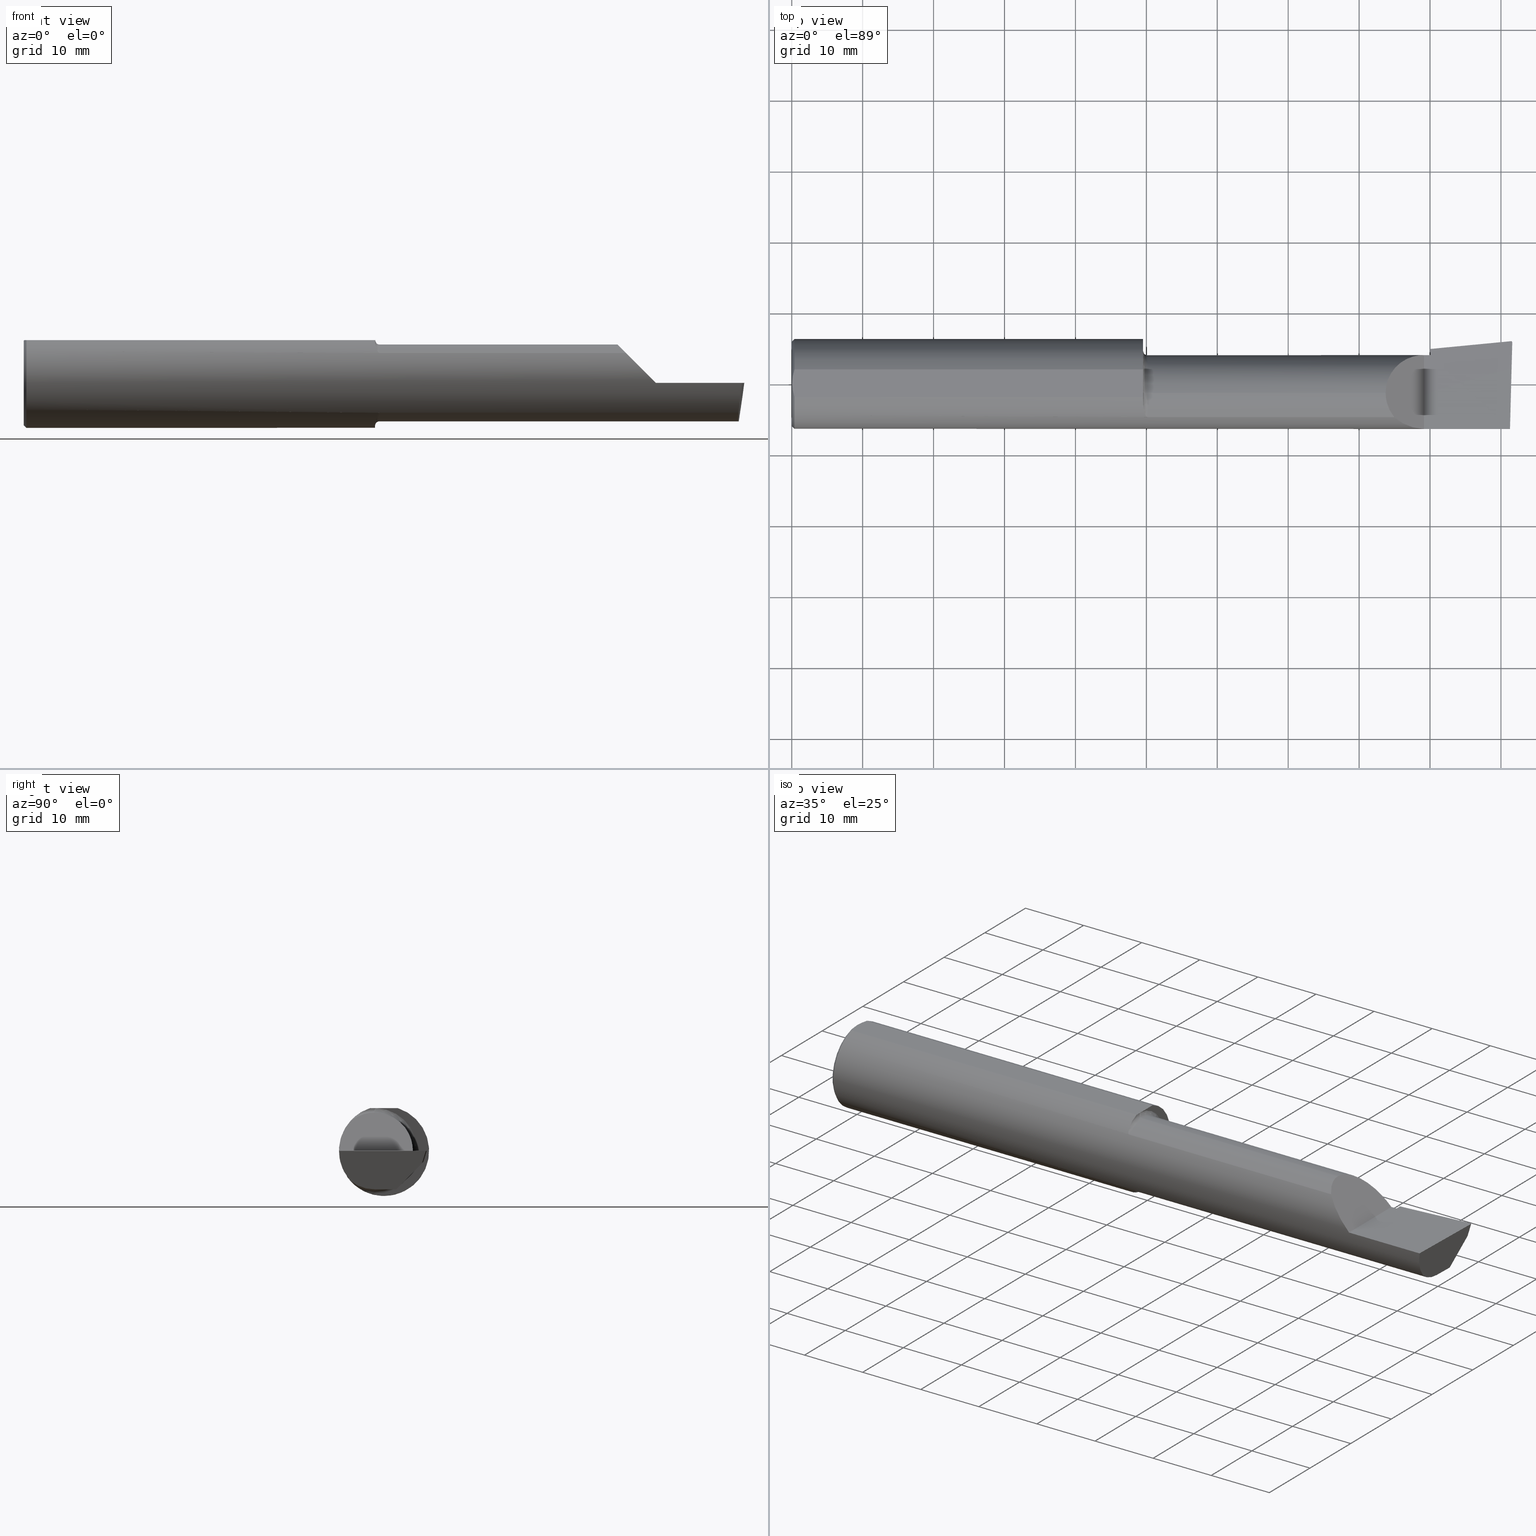
[diagram: canonical four-view strip — front | top / right | iso, engineering-drawing reading convention]
A machine part, canonical four-view strip (front | top / right | iso — engineering-drawing reading convention). The complete STEP part file that produces these views, byte-faithful:
ISO-10303-21;
HEADER;
FILE_DESCRIPTION (( 'STEP AP203' ),
    '1' );
FILE_NAME ('213714-B4902000R.STEP',
    '2024-04-17T17:30:40',
    ( '' ),
    ( '' ),
    'SwSTEP 2.0',
    'SolidWorks 2022',
    '' );
FILE_SCHEMA (( 'CONFIG_CONTROL_DESIGN' ));
ENDSEC;

DATA;
#1 = ADVANCED_FACE ( 'NONE', ( #698 ), #771, .F. ) ;
#2 = CARTESIAN_POINT ( 'NONE',  ( 1.950000900032402340, -0.05299999999999998462, 0.2378500000000221548 ) ) ;
#3 = CIRCLE ( 'NONE', #26, 0.2381499999999997785 ) ;
#4 = VECTOR ( 'NONE', #174, 39.37007874015748143 ) ;
#5 = CARTESIAN_POINT ( 'NONE',  ( 3.296849999999996061, -0.1021668565906576620, 0.2131499999999999229 ) ) ;
#6 = AXIS2_PLACEMENT_3D ( 'NONE', #72, #332, #69 ) ;
#7 = FACE_OUTER_BOUND ( 'NONE', #24, .T. ) ;
#8 = ADVANCED_FACE ( 'NONE', ( #632 ), #365, .T. ) ;
#9 = CARTESIAN_POINT ( 'NONE',  ( 3.544999999999999929, 0.02733053485622426171, -0.2131499999999999506 ) ) ;
#10 = EDGE_CURVE ( 'NONE', #235, #709, #434, .T. ) ;
#11 = LINE ( 'NONE', #354, #94 ) ;
#12 = LINE ( 'NONE', #416, #789 ) ;
#13 = APPROVAL ( #447, 'UNSPECIFIED' ) ;
#14 = AXIS2_PLACEMENT_3D ( 'NONE', #620, #822, #345 ) ;
#15 = CARTESIAN_POINT ( 'NONE',  ( 7.089685198749692867E-32, 0.1601499999999999313, 4.685946446163635703E-16 ) ) ;
#16 = ORIENTED_EDGE ( 'NONE', *, *, #374, .F. ) ;
#17 = ORIENTED_EDGE ( 'NONE', *, *, #604, .T. ) ;
#18 = DIRECTION ( 'NONE',  ( -0.9922060308645497262, 0.02598182930468380392, 0.1218693434051345420 ) ) ;
#19 = EDGE_CURVE ( 'NONE', #245, #629, #401, .T. ) ;
#20 = VERTEX_POINT ( 'NONE', #786 ) ;
#21 = EDGE_LOOP ( 'NONE', ( #40, #503, #287, #78 ) ) ;
#22 = ORIENTED_EDGE ( 'NONE', *, *, #228, .T. ) ;
#23 = CARTESIAN_POINT ( 'NONE',  ( 3.992906680581888690, 0.2374669910246689497, -1.355192034299833405E-16 ) ) ;
#24 = EDGE_LOOP ( 'NONE', ( #507, #816, #640 ) ) ;
#25 = ORIENTED_EDGE ( 'NONE', *, *, #761, .T. ) ;
#26 = AXIS2_PLACEMENT_3D ( 'NONE', #735, #326, #530 ) ;
#27 = VECTOR ( 'NONE', #807, 39.37007874015748143 ) ;
#28 = CARTESIAN_POINT ( 'NONE',  ( 0.01120763235350239959, 0.06411521680875344187, 0.2378500000000000336 ) ) ;
#29 = DIMENSIONAL_EXPONENTS ( 1.000000000000000000, 0.000000000000000000, 0.000000000000000000, 0.000000000000000000, 0.000000000000000000, 0.000000000000000000, 0.000000000000000000 ) ;
#30 = ORIENTED_EDGE ( 'NONE', *, *, #113, .F. ) ;
#31 = VERTEX_POINT ( 'NONE', #591 ) ;
#32 = LENGTH_MEASURE_WITH_UNIT ( LENGTH_MEASURE( 0.02539999999999999897 ), #435 );
#33 = VERTEX_POINT ( 'NONE', #251 ) ;
#34 = VERTEX_POINT ( 'NONE', #526 ) ;
#35 = CARTESIAN_POINT ( 'NONE',  ( 3.448145753305724259, -0.2498500000000001275, 0.06185424669427388999 ) ) ;
#36 = DATE_AND_TIME ( #770, #342 ) ;
#37 = CARTESIAN_POINT ( 'NONE',  ( 0.003000000000000063380, 0.01299872814765622858, 0.2378499999999999226 ) ) ;
#38 = ADVANCED_FACE ( 'NONE', ( #596 ), #659, .T. ) ;
#39 = CARTESIAN_POINT ( 'NONE',  ( 4.000000000000000000, -0.2500000000000000555, -1.365923996832131609E-16 ) ) ;
#40 = ORIENTED_EDGE ( 'NONE', *, *, #477, .T. ) ;
#41 = FACE_OUTER_BOUND ( 'NONE', #616, .T. ) ;
#42 = ORIENTED_EDGE ( 'NONE', *, *, #286, .F. ) ;
#43 = AXIS2_PLACEMENT_3D ( 'NONE', #67, #325, #529 ) ;
#44 = AXIS2_PLACEMENT_3D ( 'NONE', #413, #18, #484 ) ;
#45 = PERSON_AND_ORGANIZATION_ROLE ( 'creator' ) ;
#46 = CARTESIAN_POINT ( 'NONE',  ( 1.950000900032402340, -0.05299999999999998462, 0.2378500000000221548 ) ) ;
#47 = CARTESIAN_POINT ( 'NONE',  ( 3.534569588231495807, 0.1159501401920713659, -0.1355866241796521987 ) ) ;
#48 = DIRECTION ( 'NONE',  ( 0.000000000000000000, 0.000000000000000000, 1.000000000000000000 ) ) ;
#49 = CARTESIAN_POINT ( 'NONE',  ( 4.000000000000000000, -0.05299999999999998462, -0.2131499999999999229 ) ) ;
#50 = COORDINATED_UNIVERSAL_TIME_OFFSET ( 8, 0, .BEHIND. ) ;
#51 = APPROVAL_STATUS ( 'not_yet_approved' ) ;
#52 = DIRECTION ( 'NONE',  ( -1.000000000000000000, -0.000000000000000000, -0.000000000000000000 ) ) ;
#53 = CARTESIAN_POINT ( 'NONE',  ( 1.972243150415551094, -0.1862809296394751513, 0.1665094106511983141 ) ) ;
#54 = PRODUCT_DEFINITION_SHAPE ( 'NONE', 'NONE',  #565 ) ;
#55 = CARTESIAN_POINT ( 'NONE',  ( 3.536975816846326559, 0.1338694103809226765, -0.1025372660271275105 ) ) ;
#56 = PERSON_AND_ORGANIZATION ( #779, #552 ) ;
#57 = CARTESIAN_POINT ( 'NONE',  ( 1.975000000000000089, -0.1868028301886797693, -0.1659208399614082174 ) ) ;
#58 = PLANE ( 'NONE',  #43 ) ;
#59 = CARTESIAN_POINT ( 'NONE',  ( 1.950000000000000178, -0.08036415094339718901, 0.2365726648265747134 ) ) ;
#60 = CIRCLE ( 'NONE', #201, 0.02499999999999993894 ) ;
#61 = AXIS2_PLACEMENT_3D ( 'NONE', #264, #62, #856 ) ;
#62 = DIRECTION ( 'NONE',  ( 0.000000000000000000, 0.000000000000000000, 1.000000000000000000 ) ) ;
#63 = PLANE ( 'NONE',  #688 ) ;
#64 = CARTESIAN_POINT ( 'NONE',  ( 0.000000000000000000, -0.05299999999999998462, 0.2131499999999999506 ) ) ;
#65 = EDGE_CURVE ( 'NONE', #33, #489, #846, .T. ) ;
#66 = CARTESIAN_POINT ( 'NONE',  ( 1.967016733372314086, -0.1817333077058775337, -0.1714754572696057799 ) ) ;
#67 = CARTESIAN_POINT ( 'NONE',  ( 0.000000000000000000, 0.000000000000000000, 0.000000000000000000 ) ) ;
#68 = DIRECTION ( 'NONE',  ( -0.000000000000000000, 1.000000000000000000, 1.224646799147353207E-16 ) ) ;
#69 = DIRECTION ( 'NONE',  ( 0.000000000000000000, 1.000000000000000000, -1.138839417068643993E-16 ) ) ;
#70 = FACE_OUTER_BOUND ( 'NONE', #707, .T. ) ;
#71 = VECTOR ( 'NONE', #548, 39.37007874015748143 ) ;
#72 = CARTESIAN_POINT ( 'NONE',  ( 4.000000000000000000, 0.2998500000000000609, 0.2378499999999999504 ) ) ;
#73 = CC_DESIGN_APPROVAL ( #331, ( #349 ) ) ;
#74 = ADVANCED_FACE ( 'NONE', ( #718 ), #321, .F. ) ;
#75 = ORIENTED_EDGE ( 'NONE', *, *, #604, .F. ) ;
#76 = CARTESIAN_POINT ( 'NONE',  ( 0.000000000000000000, -0.05299999999999998462, 0.000000000000000000 ) ) ;
#77 = DIRECTION ( 'NONE',  ( 0.000000000000000000, 0.000000000000000000, -1.000000000000000000 ) ) ;
#78 = ORIENTED_EDGE ( 'NONE', *, *, #193, .T. ) ;
#79 = CARTESIAN_POINT ( 'NONE',  ( 1.975000000000000089, -0.05299999999999998462, 0.000000000000000000 ) ) ;
#80 = ORIENTED_EDGE ( 'NONE', *, *, #538, .F. ) ;
#81 = ORIENTED_EDGE ( 'NONE', *, *, #113, .T. ) ;
#82 = EDGE_LOOP ( 'NONE', ( #151, #500, #630, #844 ) ) ;
#83 = ADVANCED_FACE ( 'NONE', ( #115 ), #257, .F. ) ;
#84 = CARTESIAN_POINT ( 'NONE',  ( 3.993108609909219009, 0.2374864346074007926, -1.365705356632281459E-16 ) ) ;
#85 = ORIENTED_EDGE ( 'NONE', *, *, #439, .T. ) ;
#86 = VERTEX_POINT ( 'NONE', #654 ) ;
#87 = PLANE ( 'NONE',  #169 ) ;
#88 = VERTEX_POINT ( 'NONE', #394 ) ;
#89 = ORIENTED_EDGE ( 'NONE', *, *, #317, .F. ) ;
#90 = DIRECTION ( 'NONE',  ( 0.000000000000000000, 0.000000000000000000, -1.000000000000000000 ) ) ;
#91 = ORIENTED_EDGE ( 'NONE', *, *, #481, .T. ) ;
#92 = VERTEX_POINT ( 'NONE', #579 ) ;
#93 = EDGE_CURVE ( 'NONE', #763, #501, #843, .T. ) ;
#94 = VECTOR ( 'NONE', #549, 39.37007874015748854 ) ;
#95 = DIRECTION ( 'NONE',  ( 0.000000000000000000, 0.000000000000000000, 1.000000000000000000 ) ) ;
#96 = ADVANCED_FACE ( 'NONE', ( #512 ), #282, .F. ) ;
#97 = CARTESIAN_POINT ( 'NONE',  ( 0.004092330037930641193, 0.02606142970188499164, 0.2378500000000000059 ) ) ;
#98 = VERTEX_POINT ( 'NONE', #585 ) ;
#99 = CARTESIAN_POINT ( 'NONE',  ( 3.966195468375008470, -0.05299999999999998462, -0.2131499999999999229 ) ) ;
#100 = EDGE_CURVE ( 'NONE', #788, #772, #468, .T. ) ;
#101 = APPLICATION_CONTEXT ( 'configuration controlled 3d designs of mechanical parts and assemblies' ) ;
#102 = CC_DESIGN_PERSON_AND_ORGANIZATION_ASSIGNMENT ( #56, #187, ( #329 ) ) ;
#103 = EDGE_LOOP ( 'NONE', ( #694, #704, #760 ) ) ;
#104 = CARTESIAN_POINT ( 'NONE',  ( 3.989362363380625442, 0.2181189514202935831, -0.06059586115756942365 ) ) ;
#105 = DESIGN_CONTEXT ( 'detailed design', #101, 'design' ) ;
#106 = DATE_AND_TIME ( #636, #226 ) ;
#107 = DIRECTION ( 'NONE',  ( -1.000000000000000000, -0.000000000000000000, -0.000000000000000000 ) ) ;
#108 = DIRECTION ( 'NONE',  ( -1.512967610748942321E-16, 0.000000000000000000, -1.000000000000000000 ) ) ;
#109 = CARTESIAN_POINT ( 'NONE',  ( 0.004068542164723859197, -0.02585015905295368760, 0.2378499999999999226 ) ) ;
#110 = FACE_OUTER_BOUND ( 'NONE', #392, .T. ) ;
#111 = VECTOR ( 'NONE', #799, 39.37007874015748143 ) ;
#112 = AXIS2_PLACEMENT_3D ( 'NONE', #176, #642, #590 ) ;
#113 = EDGE_CURVE ( 'NONE', #629, #501, #208, .T. ) ;
#114 =( NAMED_UNIT ( * ) PLANE_ANGLE_UNIT ( ) SI_UNIT ( $, .RADIAN. ) );
#115 = FACE_OUTER_BOUND ( 'NONE', #82, .T. ) ;
#116 = CARTESIAN_POINT ( 'NONE',  ( 1.975000000000000089, -0.05299999999999998462, 0.000000000000000000 ) ) ;
#117 = CARTESIAN_POINT ( 'NONE',  ( 0.000000000000000000, -0.05299999999999998462, 0.000000000000000000 ) ) ;
#118 = ORIENTED_EDGE ( 'NONE', *, *, #627, .F. ) ;
#119 = APPLICATION_PROTOCOL_DEFINITION ( 'international standard', 'config_control_design', 1994, #802 ) ;
#120 = DIRECTION ( 'NONE',  ( 0.000000000000000000, 0.9524855432518775089, -0.3045837978228255749 ) ) ;
#121 = LINE ( 'NONE', #745, #152 ) ;
#122 = CARTESIAN_POINT ( 'NONE',  ( 1.967018584423771976, -0.1817363555988620871, 0.1714722504633798827 ) ) ;
#123 = CARTESIAN_POINT ( 'NONE',  ( 3.966195468375008470, -0.05299999999999998462, -0.2131499999999999229 ) ) ;
#124 = PERSON_AND_ORGANIZATION ( #779, #552 ) ;
#125 = CARTESIAN_POINT ( 'NONE',  ( 3.528944985009564217, 0.1743638780700109969, -0.06000000000000001166 ) ) ;
#126 = FACE_OUTER_BOUND ( 'NONE', #309, .T. ) ;
#127 = CARTESIAN_POINT ( 'NONE',  ( 0.01499999999999999771, 0.000000000000000000, -0.2498499999999999888 ) ) ;
#128 = EDGE_CURVE ( 'NONE', #433, #235, #327, .T. ) ;
#129 = EDGE_CURVE ( 'NONE', #487, #489, #60, .T. ) ;
#130 = LOCAL_TIME ( 10, 30, 40.00000000000000000, #465 ) ;
#131 =( BOUNDED_CURVE ( )  B_SPLINE_CURVE ( 3, ( #867, #134, #469, #741 ),
 .UNSPECIFIED., .F., .F. ) 
 B_SPLINE_CURVE_WITH_KNOTS ( ( 4, 4 ),
 ( 1.953092279228448858, 3.511516179717750763 ),
 .UNSPECIFIED. ) 
 CURVE ( )  GEOMETRIC_REPRESENTATION_ITEM ( )  RATIONAL_B_SPLINE_CURVE ( ( 1.000000000000000000, 0.8076450242550308189, 0.8076450242550308189, 1.000000000000000000 ) ) 
 REPRESENTATION_ITEM ( '' )  );
#132 = FACE_OUTER_BOUND ( 'NONE', #710, .T. ) ;
#133 = CARTESIAN_POINT ( 'NONE',  ( 3.509999999999999787, 0.1601499999999999035, -6.245698675651499853E-17 ) ) ;
#134 = CARTESIAN_POINT ( 'NONE',  ( 3.999910038027500558, 0.2347144908750976589, -1.375995697082077329E-16 ) ) ;
#135 = EDGE_CURVE ( 'NONE', #460, #763, #310, .T. ) ;
#136 = EDGE_CURVE ( 'NONE', #155, #86, #131, .T. ) ;
#137 = CARTESIAN_POINT ( 'NONE',  ( 1.962797058507745440, -0.1743943839926593575, -0.1789958554125692103 ) ) ;
#138 = DIRECTION ( 'NONE',  ( -0.000000000000000000, 0.000000000000000000, 1.000000000000000000 ) ) ;
#139 = DIRECTION ( 'NONE',  ( -0.09584575252021045044, 0.9953961983671800740, 0.000000000000000000 ) ) ;
#140 = VECTOR ( 'NONE', #403, 39.37007874015748143 ) ;
#141 = CIRCLE ( 'NONE', #635, 0.2348499999999996424 ) ;
#142 = DIRECTION ( 'NONE',  ( -1.000000000000000000, -0.000000000000000000, -0.000000000000000000 ) ) ;
#143 = DIRECTION ( 'NONE',  ( 0.000000000000000000, -1.000000000000000000, 0.000000000000000000 ) ) ;
#144 = DIRECTION ( 'NONE',  ( -0.1240019227989195005, -0.3022330132596635077, -0.9451342385281334968 ) ) ;
#145 = EDGE_LOOP ( 'NONE', ( #431, #421, #628, #826, #290, #288, #765, #558 ) ) ;
#146 = EDGE_CURVE ( 'NONE', #788, #34, #153, .T. ) ;
#147 = ORIENTED_EDGE ( 'NONE', *, *, #727, .T. ) ;
#148 = DIRECTION ( 'NONE',  ( 0.000000000000000000, 0.000000000000000000, 1.000000000000000000 ) ) ;
#149 = AXIS2_PLACEMENT_3D ( 'NONE', #767, #359, #161 ) ;
#150 = ORIENTED_EDGE ( 'NONE', *, *, #346, .T. ) ;
#151 = ORIENTED_EDGE ( 'NONE', *, *, #571, .F. ) ;
#152 = VECTOR ( 'NONE', #605, 39.37007874015748854 ) ;
#153 =( BOUNDED_CURVE ( )  B_SPLINE_CURVE ( 3, ( #787, #55, #670, #598 ),
 .UNSPECIFIED., .F., .F. ) 
 B_SPLINE_CURVE_WITH_KNOTS ( ( 4, 4 ),
 ( 2.868174658477173455, 2.883234730632700415 ),
 .UNSPECIFIED. ) 
 CURVE ( )  GEOMETRIC_REPRESENTATION_ITEM ( )  RATIONAL_B_SPLINE_CURVE ( ( 1.000000000000000000, 0.9999810996081960335, 0.9999810996081960335, 1.000000000000000000 ) ) 
 REPRESENTATION_ITEM ( '' )  );
#154 = MANIFOLD_SOLID_BREP ( 'Fillet1', #582 ) ;
#155 = VERTEX_POINT ( 'NONE', #183 ) ;
#156 = ADVANCED_FACE ( 'NONE', ( #271 ), #348, .F. ) ;
#157 = CARTESIAN_POINT ( 'NONE',  ( 1.950000000000000178, 0.000000000000000000, 0.000000000000000000 ) ) ;
#158 = ORIENTED_EDGE ( 'NONE', *, *, #128, .F. ) ;
#159 = ORIENTED_EDGE ( 'NONE', *, *, #791, .F. ) ;
#160 = DIRECTION ( 'NONE',  ( 0.000000000000000000, 0.000000000000000000, -1.000000000000000000 ) ) ;
#161 = DIRECTION ( 'NONE',  ( 0.000000000000000000, -1.000000000000000000, 1.707404996040164512E-16 ) ) ;
#162 = ORIENTED_EDGE ( 'NONE', *, *, #337, .T. ) ;
#163 = CARTESIAN_POINT ( 'NONE',  ( 1.950000000000000178, 0.07650098038587482829, 0.2378500000000000059 ) ) ;
#164 = ORIENTED_EDGE ( 'NONE', *, *, #409, .T. ) ;
#165 = DIRECTION ( 'NONE',  ( -1.000000000000000000, -0.000000000000000000, -0.000000000000000000 ) ) ;
#166 = VERTEX_POINT ( 'NONE', #663 ) ;
#167 = ORIENTED_EDGE ( 'NONE', *, *, #485, .F. ) ;
#168 = AXIS2_PLACEMENT_3D ( 'NONE', #116, #261, #603 ) ;
#169 = AXIS2_PLACEMENT_3D ( 'NONE', #562, #825, #680 ) ;
#170 = LINE ( 'NONE', #711, #454 ) ;
#171 = CC_DESIGN_PERSON_AND_ORGANIZATION_ASSIGNMENT ( #831, #45, ( #349 ) ) ;
#172 = CARTESIAN_POINT ( 'NONE',  ( 0.000000000000000000, 2.967931517733664878E-17, 0.2348499999999996424 ) ) ;
#173 = DIRECTION ( 'NONE',  ( 0.000000000000000000, 0.000000000000000000, 1.000000000000000000 ) ) ;
#174 = DIRECTION ( 'NONE',  ( 0.9953961983671787417, 0.09584575252022452252, -1.506002207992170530E-16 ) ) ;
#175 = APPROVAL_DATE_TIME ( #36, #13 ) ;
#176 = CARTESIAN_POINT ( 'NONE',  ( 1.950000000000000178, -0.05299999999999998462, 0.000000000000000000 ) ) ;
#177 = CARTESIAN_POINT ( 'NONE',  ( 1.950000000000000178, -0.05299999999999998462, 0.000000000000000000 ) ) ;
#178 = LINE ( 'NONE', #49, #262 ) ;
#179 = EDGE_CURVE ( 'NONE', #451, #31, #404, .T. ) ;
#180 = CARTESIAN_POINT ( 'NONE',  ( 0.01499999999999999771, 0.07650098038587481442, 0.2378500000000000059 ) ) ;
#181 = PRODUCT_RELATED_PRODUCT_CATEGORY ( 'detail', '', ( #329 ) ) ;
#182 = CARTESIAN_POINT ( 'NONE',  ( 0.01120982745448978989, -0.06412238594540857484, 0.2378500000000000336 ) ) ;
#183 = CARTESIAN_POINT ( 'NONE',  ( 3.999806390372775411, 0.2307563466314205836, -1.365348382555914988E-16 ) ) ;
#184 = CARTESIAN_POINT ( 'NONE',  ( 3.987226101480002782, -0.2496655036952227513, -1.346597502108382365E-16 ) ) ;
#185 = VECTOR ( 'NONE', #367, 39.37007874015748143 ) ;
#186 = APPROVAL_PERSON_ORGANIZATION ( #797, #798, #330 ) ;
#187 = PERSON_AND_ORGANIZATION_ROLE ( 'design_owner' ) ;
#188 = DIRECTION ( 'NONE',  ( 0.000000000000000000, 0.000000000000000000, 1.000000000000000000 ) ) ;
#189 = DIRECTION ( 'NONE',  ( 0.000000000000000000, 0.000000000000000000, 1.000000000000000000 ) ) ;
#190 = CARTESIAN_POINT ( 'NONE',  ( 3.968492717492762445, -0.1868028301886794917, -0.1659208399614086338 ) ) ;
#191 = CARTESIAN_POINT ( 'NONE',  ( 3.543466858877805326, 0.05663251955088012546, -0.1827944341085905589 ) ) ;
#192 = COORDINATED_UNIVERSAL_TIME_OFFSET ( 8, 0, .BEHIND. ) ;
#193 = EDGE_CURVE ( 'NONE', #166, #693, #724, .T. ) ;
#194 = CARTESIAN_POINT ( 'NONE',  ( 3.987221270274236229, -0.2498499999999999888, -1.346590301211604859E-16 ) ) ;
#195 = CARTESIAN_POINT ( 'NONE',  ( 1.975000000000000089, -0.1868028301886797693, -0.1659208399614082174 ) ) ;
#196 = CARTESIAN_POINT ( 'NONE',  ( 1.951680550596499808, -0.1214972057705736297, 0.2186080375779519414 ) ) ;
#197 = DIRECTION ( 'NONE',  ( 0.9953961983671800740, 0.09584575252021045044, -3.461085361674896978E-14 ) ) ;
#198 = CARTESIAN_POINT ( 'NONE',  ( 1.950000000000000178, -0.04503596074371392366, 0.2378500000000000059 ) ) ;
#199 = CARTESIAN_POINT ( 'NONE',  ( 1.950000000000000400, -0.09104204635388248035, 0.2329453649474653443 ) ) ;
#200 = EDGE_CURVE ( 'NONE', #92, #772, #488, .T. ) ;
#201 = AXIS2_PLACEMENT_3D ( 'NONE', #252, #68, #522 ) ;
#202 = VECTOR ( 'NONE', #280, 39.37007874015748143 ) ;
#203 = CARTESIAN_POINT ( 'NONE',  ( 1.965875558094659858, -0.1799506819598045704, -0.1733486322212174635 ) ) ;
#204 = DIRECTION ( 'NONE',  ( 0.000000000000000000, 0.000000000000000000, 1.000000000000000000 ) ) ;
#205 = CARTESIAN_POINT ( 'NONE',  ( 1.955537042546466653, -0.1495003888704992401, -0.2004994225712668776 ) ) ;
#206 = VERTEX_POINT ( 'NONE', #731 ) ;
#207 = CARTESIAN_POINT ( 'NONE',  ( 1.975000000000000089, -0.05299999999999998462, 0.2381499999999997785 ) ) ;
#208 = B_SPLINE_CURVE_WITH_KNOTS ( 'NONE', 3,
 ( #849, #182, #723, #109, #660, #318 ),
 .UNSPECIFIED., .F., .F.,
 ( 4, 2, 4 ),
 ( 0.002692677063605041030, 0.003672889278957893171, 0.004653101494310745746 ),
 .UNSPECIFIED. ) ;
#209 = B_SPLINE_CURVE_WITH_KNOTS ( 'NONE', 3,
 ( #568, #37, #97, #238, #28, #180 ),
 .UNSPECIFIED., .F., .F.,
 ( 4, 2, 4 ),
 ( 0.004653101494310745746, 0.005634627094920350784, 0.006616152695529954955 ),
 .UNSPECIFIED. ) ;
#210 = EDGE_LOOP ( 'NONE', ( #566, #589, #757, #42, #491, #554 ) ) ;
#211 = VECTOR ( 'NONE', #713, 39.37007874015748143 ) ;
#212 = CIRCLE ( 'NONE', #385, 0.2131500000000001172 ) ;
#213 = LINE ( 'NONE', #358, #202 ) ;
#214 = DIRECTION ( 'NONE',  ( -1.000000000000000000, -0.000000000000000000, -0.000000000000000000 ) ) ;
#215 = EDGE_CURVE ( 'NONE', #487, #88, #3, .T. ) ;
#216 = ORIENTED_EDGE ( 'NONE', *, *, #146, .T. ) ;
#217 = ORIENTED_EDGE ( 'NONE', *, *, #751, .T. ) ;
#218 = CARTESIAN_POINT ( 'NONE',  ( 0.01499999999999999771, 0.000000000000000000, 0.000000000000000000 ) ) ;
#219 = VERTEX_POINT ( 'NONE', #123 ) ;
#220 = ORIENTED_EDGE ( 'NONE', *, *, #784, .T. ) ;
#221 = AXIS2_PLACEMENT_3D ( 'NONE', #177, #776, #461 ) ;
#222 = CARTESIAN_POINT ( 'NONE',  ( 3.993310817358672438, 0.2374961668063717557, -1.366011289953956554E-16 ) ) ;
#223 = AXIS2_PLACEMENT_3D ( 'NONE', #832, #315, #90 ) ;
#224 = ORIENTED_EDGE ( 'NONE', *, *, #65, .F. ) ;
#225 = ORIENTED_EDGE ( 'NONE', *, *, #750, .T. ) ;
#226 = LOCAL_TIME ( 10, 30, 40.00000000000000000, #658 ) ;
#227 = ORIENTED_EDGE ( 'NONE', *, *, #577, .F. ) ;
#228 = EDGE_CURVE ( 'NONE', #699, #295, #702, .T. ) ;
#229 = APPROVAL_ROLE ( '' ) ;
#230 = LINE ( 'NONE', #296, #860 ) ;
#231 = ORIENTED_EDGE ( 'NONE', *, *, #135, .T. ) ;
#232 = EDGE_LOOP ( 'NONE', ( #833, #420, #75, #162 ) ) ;
#233 = ORIENTED_EDGE ( 'NONE', *, *, #93, .T. ) ;
#234 = CARTESIAN_POINT ( 'NONE',  ( 3.544999999999999929, -0.2500000000000000555, -6.775237339413629936E-17 ) ) ;
#235 = VERTEX_POINT ( 'NONE', #400 ) ;
#236 = ORIENTED_EDGE ( 'NONE', *, *, #817, .T. ) ;
#237 = CARTESIAN_POINT ( 'NONE',  ( 3.965703997523711166, -0.1485302233682060380, -0.1967848538638756750 ) ) ;
#238 = CARTESIAN_POINT ( 'NONE',  ( 0.008199648822848978544, 0.05156445313451100965, 0.2378500000000000059 ) ) ;
#239 = CARTESIAN_POINT ( 'NONE',  ( 0.01499999999999999771, 3.059780027669661931E-17, 0.2498499999999999888 ) ) ;
#240 = ORIENTED_EDGE ( 'NONE', *, *, #622, .T. ) ;
#241 = CIRCLE ( 'NONE', #364, 0.2498499999999999888 ) ;
#242 = CARTESIAN_POINT ( 'NONE',  ( 3.544999999999999929, -0.05299999999999998462, 0.000000000000000000 ) ) ;
#243 = CARTESIAN_POINT ( 'NONE',  ( 0.000000000000000000, -0.07650098038587477278, 0.2378500000000000059 ) ) ;
#244 = CARTESIAN_POINT ( 'NONE',  ( 0.01499999999999999771, 0.000000000000000000, 0.000000000000000000 ) ) ;
#245 = VERTEX_POINT ( 'NONE', #127 ) ;
#246 = EDGE_CURVE ( 'NONE', #235, #279, #570, .T. ) ;
#247 = CARTESIAN_POINT ( 'NONE',  ( 1.950000000000000178, -0.04105010460297241898, 0.2378500000000000059 ) ) ;
#248 = ORIENTED_EDGE ( 'NONE', *, *, #337, .F. ) ;
#249 =( BOUNDED_CURVE ( )  B_SPLINE_CURVE ( 3, ( #190, #533, #800, #608 ),
 .UNSPECIFIED., .F., .F. ) 
 B_SPLINE_CURVE_WITH_KNOTS ( ( 4, 4 ),
 ( 0.6344818218799022080, 1.360746882514783040 ),
 .UNSPECIFIED. ) 
 CURVE ( )  GEOMETRIC_REPRESENTATION_ITEM ( )  RATIONAL_B_SPLINE_CURVE ( ( 1.000000000000000000, 0.9565258159410998662, 0.9565258159410998662, 1.000000000000000000 ) ) 
 REPRESENTATION_ITEM ( '' )  );
#250 = APPROVAL_DATE_TIME ( #106, #331 ) ;
#251 = CARTESIAN_POINT ( 'NONE',  ( 1.975000000000000089, -0.05299999999999998462, 0.2131499999999997841 ) ) ;
#252 = CARTESIAN_POINT ( 'NONE',  ( 1.975000000000000089, -0.05299999999999996381, -0.2381499999999997785 ) ) ;
#253 = DIRECTION ( 'NONE',  ( 0.02617694830786353177, 0.9996573249755575929, -3.901665791506465006E-18 ) ) ;
#254 = ORIENTED_EDGE ( 'NONE', *, *, #664, .T. ) ;
#255 = ADVANCED_FACE ( 'NONE', ( #126 ), #541, .T. ) ;
#256 = APPROVAL_STATUS ( 'not_yet_approved' ) ;
#257 = PLANE ( 'NONE',  #383 ) ;
#258 = PLANE ( 'NONE',  #6 ) ;
#259 = ADVANCED_BREP_SHAPE_REPRESENTATION ( '213714-B4902000R', ( #154, #61 ), #456 ) ;
#260 = CARTESIAN_POINT ( 'NONE',  ( 1.975000000000000089, -0.1868028301886799081, 0.1659208399614080509 ) ) ;
#261 = DIRECTION ( 'NONE',  ( -1.000000000000000000, -0.000000000000000000, -0.000000000000000000 ) ) ;
#262 = VECTOR ( 'NONE', #639, 39.37007874015748143 ) ;
#263 = AXIS2_PLACEMENT_3D ( 'NONE', #648, #725, #576 ) ;
#264 = CARTESIAN_POINT ( 'NONE',  ( 0.000000000000000000, 0.000000000000000000, 0.000000000000000000 ) ) ;
#265 = LINE ( 'NONE', #546, #495 ) ;
#266 = CARTESIAN_POINT ( 'NONE',  ( 1.975000000000000089, -0.1868028301886799081, 0.1659208399614080509 ) ) ;
#267 = CARTESIAN_POINT ( 'NONE',  ( 3.509999999999999787, 0.1601499999999999035, -6.245698675651499853E-17 ) ) ;
#268 = ADVANCED_FACE ( 'NONE', ( #396 ), #58, .F. ) ;
#269 = CARTESIAN_POINT ( 'NONE',  ( 1.950000000000000178, -0.05299999999999996381, -0.2381499999999997785 ) ) ;
#270 = LINE ( 'NONE', #64, #140 ) ;
#271 = FACE_OUTER_BOUND ( 'NONE', #277, .T. ) ;
#272 = CARTESIAN_POINT ( 'NONE',  ( 1.972232603162240805, -0.1862758070845880742, -0.1665151405181419519 ) ) ;
#273 = CARTESIAN_POINT ( 'NONE',  ( 1.962758562425230835, -0.1743135686468872125, 0.1790760091940036824 ) ) ;
#274 = CIRCLE ( 'NONE', #758, 0.2131500000000001172 ) ;
#275 = CARTESIAN_POINT ( 'NONE',  ( 1.950000000000000178, 0.2998500000000000609, 0.2378499999999999504 ) ) ;
#276 = ADVANCED_FACE ( 'NONE', ( #7 ), #858, .T. ) ;
#277 = EDGE_LOOP ( 'NONE', ( #812, #524, #430, #302 ) ) ;
#278 = CARTESIAN_POINT ( 'NONE',  ( 3.296849999999997394, -0.05299999999999998462, 0.2131499999999999506 ) ) ;
#279 = VERTEX_POINT ( 'NONE', #266 ) ;
#280 = DIRECTION ( 'NONE',  ( -1.000000000000000000, -0.000000000000000000, -0.000000000000000000 ) ) ;
#281 = ADVANCED_FACE ( 'NONE', ( #743 ), #471, .T. ) ;
#282 = TOROIDAL_SURFACE ( 'NONE', #806, 0.2381499999999997785, 0.02499999999999993894 ) ;
#283 = LINE ( 'NONE', #15, #759 ) ;
#284 = ADVANCED_FACE ( 'NONE', ( #70 ), #651, .T. ) ;
#285 = CARTESIAN_POINT ( 'NONE',  ( 1.975000000000000089, -0.05299999999999998462, 0.000000000000000000 ) ) ;
#286 = EDGE_CURVE ( 'NONE', #555, #513, #249, .T. ) ;
#287 = ORIENTED_EDGE ( 'NONE', *, *, #390, .T. ) ;
#288 = ORIENTED_EDGE ( 'NONE', *, *, #727, .F. ) ;
#289 = CARTESIAN_POINT ( 'NONE',  ( 1.950000000000000178, -0.06494989539702750170, 0.2378500000000000059 ) ) ;
#290 = ORIENTED_EDGE ( 'NONE', *, *, #813, .F. ) ;
#291 = VERTEX_POINT ( 'NONE', #195 ) ;
#292 = DIRECTION ( 'NONE',  ( 0.000000000000000000, 0.000000000000000000, 1.000000000000000000 ) ) ;
#293 = ORIENTED_EDGE ( 'NONE', *, *, #855, .T. ) ;
#294 = ORIENTED_EDGE ( 'NONE', *, *, #538, .T. ) ;
#295 = VERTEX_POINT ( 'NONE', #133 ) ;
#296 = CARTESIAN_POINT ( 'NONE',  ( 1.950000000000000178, 0.2998500000000000609, 0.2378499999999999504 ) ) ;
#297 = ORIENTED_EDGE ( 'NONE', *, *, #791, .T. ) ;
#298 = VERTEX_POINT ( 'NONE', #467 ) ;
#299 = CARTESIAN_POINT ( 'NONE',  ( 3.544999999999999929, 0.1759098001822370361, -0.06000000000000001166 ) ) ;
#300 =( CONVERSION_BASED_UNIT ( 'INCH', #32 ) LENGTH_UNIT ( ) NAMED_UNIT ( #29 ) );
#301 = EDGE_LOOP ( 'NONE', ( #225, #25, #437, #564 ) ) ;
#302 = ORIENTED_EDGE ( 'NONE', *, *, #577, .T. ) ;
#303 = ORIENTED_EDGE ( 'NONE', *, *, #736, .T. ) ;
#304 = FACE_OUTER_BOUND ( 'NONE', #494, .T. ) ;
#305 =( BOUNDED_CURVE ( )  B_SPLINE_CURVE ( 3, ( #519, #237, #432, #99 ),
 .UNSPECIFIED., .F., .F. ) 
 B_SPLINE_CURVE_WITH_KNOTS ( ( 4, 4 ),
 ( 5.814587959757459679, 6.493234751459699083 ),
 .UNSPECIFIED. ) 
 CURVE ( )  GEOMETRIC_REPRESENTATION_ITEM ( )  RATIONAL_B_SPLINE_CURVE ( ( 1.000000000000000000, 0.9619867256453022986, 0.9619867256453022986, 1.000000000000000000 ) ) 
 REPRESENTATION_ITEM ( '' )  );
#306 = EDGE_CURVE ( 'NONE', #693, #92, #339, .T. ) ;
#307 = DIRECTION ( 'NONE',  ( -0.02617694830786351096, -0.9996573249755575929, 1.707029659308874488E-16 ) ) ;
#308 = DIRECTION ( 'NONE',  ( 0.000000000000000000, 0.000000000000000000, 1.000000000000000000 ) ) ;
#309 = EDGE_LOOP ( 'NONE', ( #824, #714, #85, #619, #248, #690, #158, #220, #426, #356, #515, #423, #227 ) ) ;
#310 = CIRCLE ( 'NONE', #551, 0.2348499999999996424 ) ;
#311 = TOROIDAL_SURFACE ( 'NONE', #263, 0.2381499999999997785, 0.02499999999999993894 ) ;
#312 = CYLINDRICAL_SURFACE ( 'NONE', #808, 0.2131499999999999506 ) ;
#313 = ORIENTED_EDGE ( 'NONE', *, *, #492, .F. ) ;
#314 = PERSON_AND_ORGANIZATION_ROLE ( 'classification_officer' ) ;
#315 = DIRECTION ( 'NONE',  ( 1.000000000000000000, 0.000000000000000000, 0.000000000000000000 ) ) ;
#316 = CARTESIAN_POINT ( 'NONE',  ( 3.509999999999999787, -0.2500000000000000555, -6.245698675651499853E-17 ) ) ;
#317 = EDGE_CURVE ( 'NONE', #699, #33, #270, .T. ) ;
#318 = CARTESIAN_POINT ( 'NONE',  ( 0.003000000000000035624, 4.000210840755228160E-17, 0.2378500000000000059 ) ) ;
#319 = CARTESIAN_POINT ( 'NONE',  ( 3.991359894127309182, 0.2138750095474682700, -0.06516861643763581513 ) ) ;
#320 = DATE_AND_TIME ( #726, #775 ) ;
#321 = PLANE ( 'NONE',  #611 ) ;
#322 = CARTESIAN_POINT ( 'NONE',  ( 0.000000000000000000, 0.000000000000000000, 0.000000000000000000 ) ) ;
#323 = EDGE_CURVE ( 'NONE', #357, #504, #446, .T. ) ;
#324 = CARTESIAN_POINT ( 'NONE',  ( 3.544999999999999929, 0.2148312740513257935, -0.01988118725737609768 ) ) ;
#325 = DIRECTION ( 'NONE',  ( 1.000000000000000000, 0.000000000000000000, 0.000000000000000000 ) ) ;
#326 = DIRECTION ( 'NONE',  ( -1.000000000000000000, -0.000000000000000000, -0.000000000000000000 ) ) ;
#327 = CIRCLE ( 'NONE', #411, 0.2498499999999999888 ) ;
#328 = AXIS2_PLACEMENT_3D ( 'NONE', #836, #631, #160 ) ;
#329 = PRODUCT ( '213714-B4902000R', '213714-B4902000R', '', ( #790 ) ) ;
#330 = APPROVAL_ROLE ( '' ) ;
#331 = APPROVAL ( #256, 'UNSPECIFIED' ) ;
#332 = DIRECTION ( 'NONE',  ( 0.000000000000000000, -1.138839417068643993E-16, -1.000000000000000000 ) ) ;
#333 = CARTESIAN_POINT ( 'NONE',  ( 1.970144309637441138, -0.1849788583324336322, 0.1679547276881062645 ) ) ;
#334 = CARTESIAN_POINT ( 'NONE',  ( 3.541916792879877374, 0.05627666367902749156, -0.1830073912696826288 ) ) ;
#335 = FACE_OUTER_BOUND ( 'NONE', #837, .T. ) ;
#336 = CARTESIAN_POINT ( 'NONE',  ( 0.01499999999999999771, 0.000000000000000000, 0.000000000000000000 ) ) ;
#337 = EDGE_CURVE ( 'NONE', #279, #206, #610, .T. ) ;
#338 = CARTESIAN_POINT ( 'NONE',  ( 0.000000000000000000, 0.07650098038587481442, 0.2378500000000000059 ) ) ;
#339 = LINE ( 'NONE', #734, #543 ) ;
#340 = AXIS2_PLACEMENT_3D ( 'NONE', #336, #866, #399 ) ;
#341 = AXIS2_PLACEMENT_3D ( 'NONE', #285, #814, #148 ) ;
#342 = LOCAL_TIME ( 10, 30, 40.00000000000000000, #362 ) ;
#343 = CARTESIAN_POINT ( 'NONE',  ( 1.950000000000000178, -0.08036415094339718901, -0.2365726648265747134 ) ) ;
#344 = ORIENTED_EDGE ( 'NONE', *, *, #592, .T. ) ;
#345 = DIRECTION ( 'NONE',  ( 0.000000000000000000, 0.000000000000000000, 1.000000000000000000 ) ) ;
#346 = EDGE_CURVE ( 'NONE', #92, #166, #274, .T. ) ;
#347 = DIRECTION ( 'NONE',  ( -1.000000000000000000, -0.000000000000000000, -0.000000000000000000 ) ) ;
#348 = TOROIDAL_SURFACE ( 'NONE', #168, 0.2381499999999997785, 0.02499999999999993894 ) ;
#349 = PRODUCT_DEFINITION_FORMATION_WITH_SPECIFIED_SOURCE ( 'ANY', '', #329, .NOT_KNOWN. ) ;
#350 = FACE_OUTER_BOUND ( 'NONE', #572, .T. ) ;
#351 = ORIENTED_EDGE ( 'NONE', *, *, #813, .T. ) ;
#352 = ORIENTED_EDGE ( 'NONE', *, *, #682, .F. ) ;
#353 = EDGE_LOOP ( 'NONE', ( #417, #233, #217, #303, #508 ) ) ;
#354 = CARTESIAN_POINT ( 'NONE',  ( 3.984064920189355430, 0.2159167454668760588, -0.06739129754782903492 ) ) ;
#355 = ORIENTED_EDGE ( 'NONE', *, *, #841, .F. ) ;
#356 = ORIENTED_EDGE ( 'NONE', *, *, #736, .F. ) ;
#357 = VERTEX_POINT ( 'NONE', #247 ) ;
#358 = CARTESIAN_POINT ( 'NONE',  ( 2.760000000000000231, -0.1868028301886794917, -0.1659208399614086338 ) ) ;
#359 = DIRECTION ( 'NONE',  ( 9.717439401676380705E-34, 1.707404996040164512E-16, 1.000000000000000000 ) ) ;
#360 = VERTEX_POINT ( 'NONE', #299 ) ;
#361 = ORIENTED_EDGE ( 'NONE', *, *, #390, .F. ) ;
#362 = COORDINATED_UNIVERSAL_TIME_OFFSET ( 8, 0, .BEHIND. ) ;
#363 = CARTESIAN_POINT ( 'NONE',  ( 3.540349815208490458, 0.05592018782259767368, -0.1832193089843152378 ) ) ;
#364 = AXIS2_PLACEMENT_3D ( 'NONE', #157, #785, #842 ) ;
#365 = CYLINDRICAL_SURFACE ( 'NONE', #687, 0.006499999999999990161 ) ;
#366 = ORIENTED_EDGE ( 'NONE', *, *, #100, .F. ) ;
#367 = DIRECTION ( 'NONE',  ( -1.000000000000000000, -0.000000000000000000, -0.000000000000000000 ) ) ;
#368 = ORIENTED_EDGE ( 'NONE', *, *, #817, .F. ) ;
#369 = SECURITY_CLASSIFICATION_LEVEL ( 'unclassified' ) ;
#370 = CARTESIAN_POINT ( 'NONE',  ( 3.544999999999999929, -0.05299999999999998462, 0.000000000000000000 ) ) ;
#371 = ORIENTED_EDGE ( 'NONE', *, *, #650, .T. ) ;
#372 = ORIENTED_EDGE ( 'NONE', *, *, #542, .F. ) ;
#373 = CARTESIAN_POINT ( 'NONE',  ( 7.089685198749692867E-32, -0.2498499999999999610, 4.685946446163635703E-16 ) ) ;
#374 = EDGE_CURVE ( 'NONE', #555, #219, #305, .T. ) ;
#375 = PERSON_AND_ORGANIZATION_ROLE ( 'design_supplier' ) ;
#376 = PLANE ( 'NONE',  #328 ) ;
#377 = CARTESIAN_POINT ( 'NONE',  ( 1.975000000000000089, -0.05299999999999998462, 0.000000000000000000 ) ) ;
#378 = ORIENTED_EDGE ( 'NONE', *, *, #323, .T. ) ;
#379 = CARTESIAN_POINT ( 'NONE',  ( 0.000000000000000000, 0.000000000000000000, -0.2348499999999996424 ) ) ;
#380 = CARTESIAN_POINT ( 'NONE',  ( 3.966218632342873196, -0.05211540375603092301, -0.2131499999999999229 ) ) ;
#381 = ADVANCED_FACE ( 'NONE', ( #110 ), #778, .F. ) ;
#382 = AXIS2_PLACEMENT_3D ( 'NONE', #244, #449, #188 ) ;
#383 = AXIS2_PLACEMENT_3D ( 'NONE', #316, #455, #728 ) ;
#384 = DIRECTION ( 'NONE',  ( 0.000000000000000000, 0.000000000000000000, -1.000000000000000000 ) ) ;
#385 = AXIS2_PLACEMENT_3D ( 'NONE', #370, #107, #292 ) ;
#386 = DIRECTION ( 'NONE',  ( 1.000000000000000000, 0.000000000000000000, 0.000000000000000000 ) ) ;
#387 = SHAPE_DEFINITION_REPRESENTATION ( #54, #259 ) ;
#388 = APPROVAL_DATE_TIME ( #320, #798 ) ;
#389 = CARTESIAN_POINT ( 'NONE',  ( 1.950000000000000178, 0.1851499999999997870, 0.000000000000000000 ) ) ;
#390 = EDGE_CURVE ( 'NONE', #219, #166, #178, .T. ) ;
#391 = CARTESIAN_POINT ( 'NONE',  ( 3.544999999999999929, -0.05299999999999998462, -0.2131499999999999229 ) ) ;
#392 = EDGE_LOOP ( 'NONE', ( #769, #580, #372, #91 ) ) ;
#393 = PERSON_AND_ORGANIZATION ( #779, #552 ) ;
#394 = CARTESIAN_POINT ( 'NONE',  ( 1.950000000000000178, -0.08036415094339718901, -0.2365726648265747134 ) ) ;
#395 = CARTESIAN_POINT ( 'NONE',  ( 1.975000000000000089, -0.05299999999999996381, -0.2131499999999997841 ) ) ;
#396 = FACE_OUTER_BOUND ( 'NONE', #569, .T. ) ;
#397 = APPROVAL_ROLE ( '' ) ;
#398 = LINE ( 'NONE', #324, #721 ) ;
#399 = DIRECTION ( 'NONE',  ( 0.000000000000000000, 0.000000000000000000, -1.000000000000000000 ) ) ;
#400 = CARTESIAN_POINT ( 'NONE',  ( 1.950000000000000178, -0.08036415094339718901, 0.2365726648265747134 ) ) ;
#401 = CIRCLE ( 'NONE', #382, 0.2498499999999999888 ) ;
#402 = CARTESIAN_POINT ( 'NONE',  ( 0.003000000000000035624, 4.000210840755228160E-17, 0.2378500000000000059 ) ) ;
#403 = DIRECTION ( 'NONE',  ( -1.000000000000000000, -0.000000000000000000, -0.000000000000000000 ) ) ;
#404 = LINE ( 'NONE', #457, #774 ) ;
#405 = EDGE_CURVE ( 'NONE', #783, #753, #773, .T. ) ;
#406 = CARTESIAN_POINT ( 'NONE',  ( 3.968492717492762445, -0.1868028301886794917, -0.1659208399614086338 ) ) ;
#407 = CC_DESIGN_DATE_AND_TIME_ASSIGNMENT ( #428, #657, ( #614 ) ) ;
#408 = DIRECTION ( 'NONE',  ( 0.000000000000000000, 0.9524855432518775089, -0.3045837978228255749 ) ) ;
#409 = EDGE_CURVE ( 'NONE', #298, #451, #852, .T. ) ;
#410 = CARTESIAN_POINT ( 'NONE',  ( 1.949999999999989297, -0.1016924291521895257, -0.2293274111511737212 ) ) ;
#411 = AXIS2_PLACEMENT_3D ( 'NONE', #674, #655, #384 ) ;
#412 = VECTOR ( 'NONE', #466, 39.37007874015748854 ) ;
#413 = CARTESIAN_POINT ( 'NONE',  ( 3.963949576795522844, -0.1303119248116119400, -0.2149526021148821242 ) ) ;
#414 = EDGE_CURVE ( 'NONE', #513, #155, #581, .T. ) ;
#415 = CYLINDRICAL_SURFACE ( 'NONE', #612, 0.2131499999999999506 ) ;
#416 = CARTESIAN_POINT ( 'NONE',  ( 0.000000000000000000, -0.05299999999999996381, -0.2131499999999999506 ) ) ;
#417 = ORIENTED_EDGE ( 'NONE', *, *, #587, .F. ) ;
#418 = CIRCLE ( 'NONE', #341, 0.2131499999999997841 ) ;
#419 = CARTESIAN_POINT ( 'NONE',  ( 3.993512870449309915, 0.2374961668063717279, -1.365923996832131609E-16 ) ) ;
#420 = ORIENTED_EDGE ( 'NONE', *, *, #317, .T. ) ;
#421 = ORIENTED_EDGE ( 'NONE', *, *, #136, .T. ) ;
#422 =( BOUNDED_CURVE ( )  B_SPLINE_CURVE ( 3, ( #645, #35, #839, #656 ),
 .UNSPECIFIED., .F., .F. ) 
 B_SPLINE_CURVE_WITH_KNOTS ( ( 4, 4 ),
 ( 4.712388980384687898, 5.438654041019563401 ),
 .UNSPECIFIED. ) 
 CURVE ( )  GEOMETRIC_REPRESENTATION_ITEM ( )  RATIONAL_B_SPLINE_CURVE ( ( 1.000000000000000000, 0.9565258159411005323, 0.9565258159411005323, 1.000000000000000000 ) ) 
 REPRESENTATION_ITEM ( '' )  );
#423 = ORIENTED_EDGE ( 'NONE', *, *, #750, .F. ) ;
#424 = EDGE_CURVE ( 'NONE', #451, #155, #170, .T. ) ;
#425 = CARTESIAN_POINT ( 'NONE',  ( 3.509999999999999787, -0.2500000000000000555, -6.245698675651499853E-17 ) ) ;
#426 = ORIENTED_EDGE ( 'NONE', *, *, #19, .F. ) ;
#427 = VERTEX_POINT ( 'NONE', #163 ) ;
#428 = DATE_AND_TIME ( #853, #792 ) ;
#429 = CARTESIAN_POINT ( 'NONE',  ( 1.950000000000000178, -0.06096394231309124057, 0.2378500000000000059 ) ) ;
#430 = ORIENTED_EDGE ( 'NONE', *, *, #682, .T. ) ;
#431 = ORIENTED_EDGE ( 'NONE', *, *, #414, .T. ) ;
#432 = CARTESIAN_POINT ( 'NONE',  ( 3.964907988924523785, -0.1021668565906570653, -0.2131499999999999784 ) ) ;
#433 = VERTEX_POINT ( 'NONE', #705 ) ;
#434 = CIRCLE ( 'NONE', #221, 0.2381499999999997785 ) ;
#435 =( LENGTH_UNIT ( ) NAMED_UNIT ( * ) SI_UNIT ( $, .METRE. ) );
#436 = CIRCLE ( 'NONE', #112, 0.2381499999999997785 ) ;
#437 = ORIENTED_EDGE ( 'NONE', *, *, #841, .T. ) ;
#438 = ORIENTED_EDGE ( 'NONE', *, *, #129, .F. ) ;
#439 = EDGE_CURVE ( 'NONE', #513, #823, #845, .T. ) ;
#440 = CARTESIAN_POINT ( 'NONE',  ( 3.527186805775588851, 0.1926232675528999905, -6.829619984160658046E-17 ) ) ;
#441 = CARTESIAN_POINT ( 'NONE',  ( 3.985635073714570709, 0.2182954141789433533, -0.06004403198038582579 ) ) ;
#442 = DIRECTION ( 'NONE',  ( 1.000000000000000000, 0.000000000000000000, 0.000000000000000000 ) ) ;
#443 = DIRECTION ( 'NONE',  ( 0.09165774897393341725, -0.9519021185660615503, 0.2923717047227301635 ) ) ;
#444 = EDGE_CURVE ( 'NONE', #823, #206, #422, .T. ) ;
#445 = UNCERTAINTY_MEASURE_WITH_UNIT (LENGTH_MEASURE( 1.000000000000000082E-05 ), #300, 'distance_accuracy_value', 'NONE');
#446 = B_SPLINE_CURVE_WITH_KNOTS ( 'NONE', 3,
 ( #537, #198, #673, #2 ),
 .UNSPECIFIED., .F., .F.,
 ( 4, 4 ),
 ( 0.000000000000000000, 0.4999999999997236100 ),
 .UNSPECIFIED. ) ;
#447 = APPROVAL_STATUS ( 'not_yet_approved' ) ;
#448 = FACE_OUTER_BOUND ( 'NONE', #301, .T. ) ;
#449 = DIRECTION ( 'NONE',  ( -1.000000000000000000, -0.000000000000000000, -0.000000000000000000 ) ) ;
#450 = CARTESIAN_POINT ( 'NONE',  ( 0.9762916401177922365, -0.05299999999999998462, 3.208848816020454083E-16 ) ) ;
#451 = VERTEX_POINT ( 'NONE', #514 ) ;
#452 = CARTESIAN_POINT ( 'NONE',  ( 3.985436870590281178, 0.2183047977990047461, -0.06001468779820763599 ) ) ;
#453 = ADVANCED_FACE ( 'NONE', ( #304 ), #311, .F. ) ;
#454 = VECTOR ( 'NONE', #594, 39.37007874015748854 ) ;
#455 = DIRECTION ( 'NONE',  ( -0.7071067811865439090, 0.000000000000000000, -0.7071067811865511255 ) ) ;
#456 =( GEOMETRIC_REPRESENTATION_CONTEXT ( 3 ) GLOBAL_UNCERTAINTY_ASSIGNED_CONTEXT ( ( #445 ) ) GLOBAL_UNIT_ASSIGNED_CONTEXT ( ( #300, #114, #520 ) ) REPRESENTATION_CONTEXT ( 'NONE', 'WORKASPACE' ) );
#457 = CARTESIAN_POINT ( 'NONE',  ( 3.983714411583730630, 0.1632262006094490903, -0.1166167083458043846 ) ) ;
#458 = APPROVAL_PERSON_ORGANIZATION ( #641, #13, #229 ) ;
#459 = CARTESIAN_POINT ( 'NONE',  ( 3.990474961019639277, 0.2080126185684980644, -0.07112352112763094258 ) ) ;
#460 = VERTEX_POINT ( 'NONE', #379 ) ;
#461 = DIRECTION ( 'NONE',  ( 0.000000000000000000, 0.000000000000000000, 1.000000000000000000 ) ) ;
#462 = CARTESIAN_POINT ( 'NONE',  ( 3.535684672073136081, 0.1043695517189344030, -0.2900000000000000910 ) ) ;
#463 = CARTESIAN_POINT ( 'NONE',  ( 1.957343635746627175, -0.1582230848692702252, 0.1936715022401945541 ) ) ;
#464 = CARTESIAN_POINT ( 'NONE',  ( 3.540349815208490458, 0.05592018782259767368, -0.1832193089843152378 ) ) ;
#465 = COORDINATED_UNIVERSAL_TIME_OFFSET ( 8, 0, .BEHIND. ) ;
#466 = DIRECTION ( 'NONE',  ( 0.06658005426110603919, -0.6914603011188220627, -0.7193398003386548556 ) ) ;
#467 = CARTESIAN_POINT ( 'NONE',  ( 3.985635073714570709, 0.2182954141789433533, -0.06004403198038582579 ) ) ;
#468 =( BOUNDED_CURVE ( )  B_SPLINE_CURVE ( 3, ( #517, #47, #854, #521 ),
 .UNSPECIFIED., .F., .F. ) 
 B_SPLINE_CURVE_WITH_KNOTS ( ( 4, 4 ),
 ( 0.4968328636548078880, 1.034445644973930545 ),
 .UNSPECIFIED. ) 
 CURVE ( )  GEOMETRIC_REPRESENTATION_ITEM ( )  RATIONAL_B_SPLINE_CURVE ( ( 1.000000000000000000, 0.9760590552538844777, 0.9760590552538844777, 1.000000000000000000 ) ) 
 REPRESENTATION_ITEM ( '' )  );
#469 = CARTESIAN_POINT ( 'NONE',  ( 3.997312560284819405, 0.2374961668063720333, -1.372065797387761951E-16 ) ) ;
#470 = CARTESIAN_POINT ( 'NONE',  ( 1.970138573936400572, -0.1849738682364336084, -0.1679602226613245985 ) ) ;
#471 = CYLINDRICAL_SURFACE ( 'NONE', #493, 0.006499999999999990161 ) ;
#472 = DIRECTION ( 'NONE',  ( 0.000000000000000000, 1.000000000000000000, -1.707404996040164265E-16 ) ) ;
#473 = ADVANCED_FACE ( 'NONE', ( #41 ), #312, .T. ) ;
#474 = CIRCLE ( 'NONE', #653, 0.2131499999999997841 ) ;
#475 = CARTESIAN_POINT ( 'NONE',  ( 3.528944985009564217, 0.1743638780700109969, -0.06000000000000001166 ) ) ;
#476 = CARTESIAN_POINT ( 'NONE',  ( 3.544999999999999929, 0.1943384830701196664, 0.000000000000000000 ) ) ;
#477 = EDGE_CURVE ( 'NONE', #693, #31, #121, .T. ) ;
#478 = CARTESIAN_POINT ( 'NONE',  ( 1.951227564404961257, -0.1217005943024302012, -0.2193523119135132871 ) ) ;
#479 =( BOUNDED_CURVE ( )  B_SPLINE_CURVE ( 3, ( #419, #222, #84, #746 ),
 .UNSPECIFIED., .F., .T. ) 
 B_SPLINE_CURVE_WITH_KNOTS ( ( 4, 4 ),
 ( 3.511516179717750763, 3.604018710826266680 ),
 .UNSPECIFIED. ) 
 CURVE ( )  GEOMETRIC_REPRESENTATION_ITEM ( )  RATIONAL_B_SPLINE_CURVE ( ( 1.000000000000000000, 0.9992870672494020834, 0.9992870672494020834, 1.000000000000000000 ) ) 
 REPRESENTATION_ITEM ( '' )  );
#480 = ORIENTED_EDGE ( 'NONE', *, *, #855, .F. ) ;
#481 = EDGE_CURVE ( 'NONE', #360, #783, #265, .T. ) ;
#482 = CARTESIAN_POINT ( 'NONE',  ( 0.01499999999998191669, -0.07650098038590480432, 0.2378500000000000059 ) ) ;
#483 = VECTOR ( 'NONE', #307, 39.37007874015748854 ) ;
#484 = DIRECTION ( 'NONE',  ( 0.1219104985252699169, 0.000000000000000000, 0.9925410975618693676 ) ) ;
#485 = EDGE_CURVE ( 'NONE', #788, #772, #865, .T. ) ;
#486 = DIRECTION ( 'NONE',  ( 0.000000000000000000, 0.000000000000000000, 1.000000000000000000 ) ) ;
#487 = VERTEX_POINT ( 'NONE', #269 ) ;
#488 =( BOUNDED_CURVE ( )  B_SPLINE_CURVE ( 3, ( #795, #191, #334, #464 ),
 .UNSPECIFIED., .F., .T. ) 
 B_SPLINE_CURVE_WITH_KNOTS ( ( 4, 4 ),
 ( 3.399950576546887593, 3.405787439796295057 ),
 .UNSPECIFIED. ) 
 CURVE ( )  GEOMETRIC_REPRESENTATION_ITEM ( )  RATIONAL_B_SPLINE_CURVE ( ( 1.000000000000000000, 0.9999971609209656886, 0.9999971609209656886, 1.000000000000000000 ) ) 
 REPRESENTATION_ITEM ( '' )  );
#489 = VERTEX_POINT ( 'NONE', #395 ) ;
#490 = LINE ( 'NONE', #425, #668 ) ;
#491 = ORIENTED_EDGE ( 'NONE', *, *, #374, .T. ) ;
#492 = EDGE_CURVE ( 'NONE', #709, #433, #600, .T. ) ;
#493 = AXIS2_PLACEMENT_3D ( 'NONE', #662, #606, #408 ) ;
#494 = EDGE_LOOP ( 'NONE', ( #438, #355, #378, #240, #681 ) ) ;
#495 = VECTOR ( 'NONE', #729, 39.37007874015748854 ) ;
#496 = CONICAL_SURFACE ( 'NONE', #223, 0.2498499999999999888, 0.7853981633974601584 ) ;
#497 = FACE_OUTER_BOUND ( 'NONE', #210, .T. ) ;
#498 = ORIENTED_EDGE ( 'NONE', *, *, #323, .F. ) ;
#499 = ORIENTED_EDGE ( 'NONE', *, *, #200, .T. ) ;
#500 = ORIENTED_EDGE ( 'NONE', *, *, #444, .F. ) ;
#501 = VERTEX_POINT ( 'NONE', #402 ) ;
#502 = LINE ( 'NONE', #380, #483 ) ;
#503 = ORIENTED_EDGE ( 'NONE', *, *, #777, .T. ) ;
#504 = VERTEX_POINT ( 'NONE', #536 ) ;
#505 = ORIENTED_EDGE ( 'NONE', *, *, #246, .T. ) ;
#506 = ADVANCED_FACE ( 'NONE', ( #335 ), #803, .F. ) ;
#507 = ORIENTED_EDGE ( 'NONE', *, *, #306, .F. ) ;
#508 = ORIENTED_EDGE ( 'NONE', *, *, #744, .F. ) ;
#509 = DIRECTION ( 'NONE',  ( 0.000000000000000000, -0.2936076258024059027, -0.9559260233253797923 ) ) ;
#510 = CARTESIAN_POINT ( 'NONE',  ( 3.985034660857450728, 0.2182803188501215574, -0.06000000000000001166 ) ) ;
#511 = CC_DESIGN_APPROVAL ( #798, ( #565 ) ) ;
#512 = FACE_OUTER_BOUND ( 'NONE', #624, .T. ) ;
#513 = VERTEX_POINT ( 'NONE', #194 ) ;
#514 = CARTESIAN_POINT ( 'NONE',  ( 3.990474961019639277, 0.2080126185684980644, -0.07112352112763094258 ) ) ;
#515 = ORIENTED_EDGE ( 'NONE', *, *, #557, .T. ) ;
#516 = CARTESIAN_POINT ( 'NONE',  ( 1.950000000000000178, -0.06494989539702750170, 0.2378500000000000059 ) ) ;
#517 = CARTESIAN_POINT ( 'NONE',  ( 3.532795049205045501, 0.1343794326159074848, -0.1015966078791037813 ) ) ;
#518 = ORIENTED_EDGE ( 'NONE', *, *, #485, .T. ) ;
#519 = CARTESIAN_POINT ( 'NONE',  ( 3.968492717492762445, -0.1868028301886794917, -0.1659208399614086338 ) ) ;
#520 =( NAMED_UNIT ( * ) SI_UNIT ( $, .STERADIAN. ) SOLID_ANGLE_UNIT ( ) );
#521 = CARTESIAN_POINT ( 'NONE',  ( 3.540349815208490458, 0.05592018782259767368, -0.1832193089843152378 ) ) ;
#522 = DIRECTION ( 'NONE',  ( 0.000000000000000000, 0.000000000000000000, 1.000000000000000000 ) ) ;
#523 = DIRECTION ( 'NONE',  ( -1.000000000000000000, -0.000000000000000000, -0.000000000000000000 ) ) ;
#524 = ORIENTED_EDGE ( 'NONE', *, *, #129, .T. ) ;
#525 = AXIS2_PLACEMENT_3D ( 'NONE', #476, #676, #138 ) ;
#526 = CARTESIAN_POINT ( 'NONE',  ( 3.544999999999999929, 0.1328281892403431197, -0.1044069278527782751 ) ) ;
#527 = CARTESIAN_POINT ( 'NONE',  ( 0.000000000000000000, 0.000000000000000000, 0.000000000000000000 ) ) ;
#528 = AXIS2_PLACEMENT_3D ( 'NONE', #218, #214, #486 ) ;
#529 = DIRECTION ( 'NONE',  ( 0.000000000000000000, 0.000000000000000000, -1.000000000000000000 ) ) ;
#530 = DIRECTION ( 'NONE',  ( 0.000000000000000000, 0.000000000000000000, 1.000000000000000000 ) ) ;
#531 = DATE_AND_TIME ( #861, #130 ) ;
#532 = CARTESIAN_POINT ( 'NONE',  ( 3.528944985009564217, 0.1743638780700109969, -0.06000000000000001166 ) ) ;
#533 = CARTESIAN_POINT ( 'NONE',  ( 3.973097331270538657, -0.2278791102234774268, -0.1196748990301326199 ) ) ;
#534 = CARTESIAN_POINT ( 'NONE',  ( 3.296849999999997394, -0.05299999999999998462, 0.2131499999999999506 ) ) ;
#535 = ADVANCED_FACE ( 'NONE', ( #742 ), #258, .F. ) ;
#536 = CARTESIAN_POINT ( 'NONE',  ( 1.950000900032402340, -0.05299999999999998462, 0.2378500000000221548 ) ) ;
#537 = CARTESIAN_POINT ( 'NONE',  ( 1.950000000000000178, -0.04105010460297241898, 0.2378500000000000059 ) ) ;
#538 = EDGE_CURVE ( 'NONE', #34, #360, #398, .T. ) ;
#539 = DIRECTION ( 'NONE',  ( -0.1053106618241655690, -0.6976485211320173629, -0.7086580314005234138 ) ) ;
#540 = CARTESIAN_POINT ( 'NONE',  ( 3.296849999999997394, -0.05299999999999998462, 0.2131499999999999506 ) ) ;
#541 = CYLINDRICAL_SURFACE ( 'NONE', #719, 0.2498499999999999888 ) ;
#542 = EDGE_CURVE ( 'NONE', #360, #700, #862, .T. ) ;
#543 = VECTOR ( 'NONE', #669, 39.37007874015748143 ) ;
#544 = ADVANCED_FACE ( 'NONE', ( #132 ), #63, .T. ) ;
#545 = VECTOR ( 'NONE', #717, 39.37007874015748143 ) ;
#546 = CARTESIAN_POINT ( 'NONE',  ( 3.544999999999999929, 0.1943384830701256338, -1.835999299118473954E-15 ) ) ;
#547 = ORIENTED_EDGE ( 'NONE', *, *, #477, .F. ) ;
#548 = DIRECTION ( 'NONE',  ( 0.7071067811865391350, 0.000000000000000000, -0.7071067811865558994 ) ) ;
#549 = DIRECTION ( 'NONE',  ( -0.1240019227989195005, -0.3022330132596635077, -0.9451342385281334968 ) ) ;
#550 = CC_DESIGN_PERSON_AND_ORGANIZATION_ASSIGNMENT ( #720, #375, ( #349 ) ) ;
#551 = AXIS2_PLACEMENT_3D ( 'NONE', #593, #859, #48 ) ;
#552 = ORGANIZATION ( 'UNSPECIFIED', 'UNSPECIFIED', '' ) ;
#553 = DIRECTION ( 'NONE',  ( 1.000000000000000000, 0.000000000000000000, 0.000000000000000000 ) ) ;
#554 = ORIENTED_EDGE ( 'NONE', *, *, #777, .F. ) ;
#555 = VERTEX_POINT ( 'NONE', #406 ) ;
#556 = CYLINDRICAL_SURFACE ( 'NONE', #14, 0.2131499999999999506 ) ;
#557 = EDGE_CURVE ( 'NONE', #20, #427, #615, .T. ) ;
#558 = ORIENTED_EDGE ( 'NONE', *, *, #439, .F. ) ;
#559 = EDGE_LOOP ( 'NONE', ( #764, #638, #703, #30, #649, #313, #368, #498 ) ) ;
#560 = CC_DESIGN_DATE_AND_TIME_ASSIGNMENT ( #531, #732, ( #565 ) ) ;
#561 = ORIENTED_EDGE ( 'NONE', *, *, #622, .F. ) ;
#562 = CARTESIAN_POINT ( 'NONE',  ( 3.544999999999999929, 0.1943384830701196664, 0.000000000000000000 ) ) ;
#563 = ORIENTED_EDGE ( 'NONE', *, *, #135, .F. ) ;
#564 = ORIENTED_EDGE ( 'NONE', *, *, #215, .T. ) ;
#565 = PRODUCT_DEFINITION ( 'UNKNOWN', '', #349, #105 ) ;
#566 = ORIENTED_EDGE ( 'NONE', *, *, #179, .F. ) ;
#567 = PERSON_AND_ORGANIZATION ( #779, #552 ) ;
#568 = CARTESIAN_POINT ( 'NONE',  ( 0.003000000000000035624, 4.000210840755228160E-17, 0.2378500000000000059 ) ) ;
#569 = EDGE_LOOP ( 'NONE', ( #231, #696 ) ) ;
#570 = B_SPLINE_CURVE_WITH_KNOTS ( 'NONE', 3,
 ( #59, #199, #801, #196, #602, #730, #463, #740, #273, #804, #122, #809, #333, #53, #863, #260 ),
 .UNSPECIFIED., .F., .F.,
 ( 4, 2, 2, 2, 2, 2, 2, 4 ),
 ( 0.0001034694911878293507, 0.0009591263138367569618, 0.001814783136485684451, 0.002670439959134611723, 0.003098268370459072215, 0.003312182576121307231, 0.003419139678952419752, 0.003526096781783531840 ),
 .UNSPECIFIED. ) ;
#571 = EDGE_CURVE ( 'NONE', #206, #699, #796, .T. ) ;
#572 = EDGE_LOOP ( 'NONE', ( #80, #159, #351, #838 ) ) ;
#573 = CARTESIAN_POINT ( 'NONE',  ( 3.985236590184780159, 0.2182997624328534003, -0.05999999999999994921 ) ) ;
#574 = EDGE_LOOP ( 'NONE', ( #633, #586, #820, #834 ) ) ;
#575 = ORIENTED_EDGE ( 'NONE', *, *, #100, .T. ) ;
#576 = DIRECTION ( 'NONE',  ( 0.000000000000000000, 0.000000000000000000, 1.000000000000000000 ) ) ;
#577 = EDGE_CURVE ( 'NONE', #291, #88, #748, .T. ) ;
#578 = LINE ( 'NONE', #234, #545 ) ;
#579 = CARTESIAN_POINT ( 'NONE',  ( 3.544999999999999929, 0.05698775240724691937, -0.1825804393148461047 ) ) ;
#580 = ORIENTED_EDGE ( 'NONE', *, *, #691, .T. ) ;
#581 = LINE ( 'NONE', #184, #828 ) ;
#582 = CLOSED_SHELL ( 'NONE', ( #8, #473, #613, #156, #453, #829, #276, #255, #535, #74, #83, #268, #284, #96, #810, #38, #716, #689, #1, #381, #506, #544, #671, #281 ) ) ;
#583 = CARTESIAN_POINT ( 'NONE',  ( 1.950001800093990711, -0.05698398688203908796, 0.2378499975680403167 ) ) ;
#584 = AXIS2_PLACEMENT_3D ( 'NONE', #125, #672, #667 ) ;
#585 = CARTESIAN_POINT ( 'NONE',  ( 3.544999999999999929, 0.1601500000000001256, 4.685946446163640633E-16 ) ) ;
#586 = ORIENTED_EDGE ( 'NONE', *, *, #136, .F. ) ;
#587 = EDGE_CURVE ( 'NONE', #763, #460, #141, .T. ) ;
#588 = DIRECTION ( 'NONE',  ( -1.000000000000000000, -0.000000000000000000, -0.000000000000000000 ) ) ;
#589 = ORIENTED_EDGE ( 'NONE', *, *, #424, .T. ) ;
#590 = DIRECTION ( 'NONE',  ( 0.000000000000000000, 0.000000000000000000, 1.000000000000000000 ) ) ;
#591 = CARTESIAN_POINT ( 'NONE',  ( 3.969369008890590411, 0.06819262280682611421, -0.2131499999999999784 ) ) ;
#592 = EDGE_CURVE ( 'NONE', #555, #291, #213, .T. ) ;
#593 = CARTESIAN_POINT ( 'NONE',  ( 0.000000000000000000, 0.000000000000000000, 0.000000000000000000 ) ) ;
#594 = DIRECTION ( 'NONE',  ( 0.1240019227989195144, 0.3022330132596634522, 0.9451342385281334968 ) ) ;
#595 = ORIENTED_EDGE ( 'NONE', *, *, #744, .T. ) ;
#596 = FACE_OUTER_BOUND ( 'NONE', #103, .T. ) ;
#597 = DIRECTION ( 'NONE',  ( -1.000000000000000000, -0.000000000000000000, -0.000000000000000000 ) ) ;
#598 = CARTESIAN_POINT ( 'NONE',  ( 3.544999999999999929, 0.1328281892403431197, -0.1044069278527782751 ) ) ;
#599 = PERSON_AND_ORGANIZATION_ROLE ( 'creator' ) ;
#600 = LINE ( 'NONE', #275, #111 ) ;
#601 = CIRCLE ( 'NONE', #528, 0.2498499999999999888 ) ;
#602 = CARTESIAN_POINT ( 'NONE',  ( 1.952700302592143000, -0.1312404656039931616, 0.2128935242986061405 ) ) ;
#603 = DIRECTION ( 'NONE',  ( 0.000000000000000000, 0.000000000000000000, 1.000000000000000000 ) ) ;
#604 = EDGE_CURVE ( 'NONE', #279, #33, #418, .T. ) ;
#605 = DIRECTION ( 'NONE',  ( 0.9953961983671800740, 0.09584575252021027003, -1.516874858616837700E-17 ) ) ;
#606 = DIRECTION ( 'NONE',  ( -0.1240019227989195005, -0.3022330132596635077, -0.9451342385281334968 ) ) ;
#607 = CARTESIAN_POINT ( 'NONE',  ( 3.344079160038590626, -0.1868028301886808795, 0.1659208399614073015 ) ) ;
#608 = CARTESIAN_POINT ( 'NONE',  ( 3.987221270274236229, -0.2498499999999999888, -1.346590301211604859E-16 ) ) ;
#609 = CARTESIAN_POINT ( 'NONE',  ( 1.961285743882607679, -0.1704402150608122779, -0.1827701868778691119 ) ) ;
#610 = LINE ( 'NONE', #782, #634 ) ;
#611 = AXIS2_PLACEMENT_3D ( 'NONE', #39, #108, #857 ) ;
#612 = AXIS2_PLACEMENT_3D ( 'NONE', #76, #618, #692 ) ;
#613 = ADVANCED_FACE ( 'NONE', ( #623 ), #556, .T. ) ;
#614 = SECURITY_CLASSIFICATION ( '', '', #369 ) ;
#615 = LINE ( 'NONE', #338, #27 ) ;
#616 = EDGE_LOOP ( 'NONE', ( #150, #371, #224, #89, #22, #147, #297, #768, #575, #835 ) ) ;
#617 = CC_DESIGN_PERSON_AND_ORGANIZATION_ASSIGNMENT ( #567, #314, ( #614 ) ) ;
#618 = DIRECTION ( 'NONE',  ( -1.000000000000000000, -0.000000000000000000, -0.000000000000000000 ) ) ;
#619 = ORIENTED_EDGE ( 'NONE', *, *, #444, .T. ) ;
#620 = CARTESIAN_POINT ( 'NONE',  ( 0.000000000000000000, -0.05299999999999998462, 0.000000000000000000 ) ) ;
#621 = VECTOR ( 'NONE', #144, 39.37007874015748854 ) ;
#622 = EDGE_CURVE ( 'NONE', #504, #33, #708, .T. ) ;
#623 = FACE_OUTER_BOUND ( 'NONE', #232, .T. ) ;
#624 = EDGE_LOOP ( 'NONE', ( #561, #236, #686, #505, #17 ) ) ;
#625 =( BOUNDED_CURVE ( )  B_SPLINE_CURVE ( 3, ( #510, #573, #452, #441 ),
 .UNSPECIFIED., .F., .F. ) 
 B_SPLINE_CURVE_WITH_KNOTS ( ( 4, 4 ),
 ( 3.064097098354582993, 3.156599629463191281 ),
 .UNSPECIFIED. ) 
 CURVE ( )  GEOMETRIC_REPRESENTATION_ITEM ( )  RATIONAL_B_SPLINE_CURVE ( ( 1.000000000000000000, 0.9992870672494006401, 0.9992870672494006401, 1.000000000000000000 ) ) 
 REPRESENTATION_ITEM ( '' )  );
#626 = CARTESIAN_POINT ( 'NONE',  ( 3.984660695557686427, 0.2159205377273338555, -0.06747067615297966392 ) ) ;
#627 = EDGE_CURVE ( 'NONE', #86, #753, #479, .T. ) ;
#628 = ORIENTED_EDGE ( 'NONE', *, *, #627, .T. ) ;
#629 = VERTEX_POINT ( 'NONE', #482 ) ;
#630 = ORIENTED_EDGE ( 'NONE', *, *, #684, .T. ) ;
#631 = DIRECTION ( 'NONE',  ( 1.000000000000000000, 0.000000000000000000, 0.000000000000000000 ) ) ;
#632 = FACE_OUTER_BOUND ( 'NONE', #827, .T. ) ;
#633 = ORIENTED_EDGE ( 'NONE', *, *, #664, .F. ) ;
#634 = VECTOR ( 'NONE', #386, 39.37007874015748143 ) ;
#635 = AXIS2_PLACEMENT_3D ( 'NONE', #527, #794, #189 ) ;
#636 = CALENDAR_DATE ( 2024, 17, 4 ) ;
#637 = DIRECTION ( 'NONE',  ( -0.1240019227989195005, -0.3022330132596635077, -0.9451342385281334968 ) ) ;
#638 = ORIENTED_EDGE ( 'NONE', *, *, #557, .F. ) ;
#639 = DIRECTION ( 'NONE',  ( -1.000000000000000000, 5.691349986800549142E-18, -0.000000000000000000 ) ) ;
#640 = ORIENTED_EDGE ( 'NONE', *, *, #346, .F. ) ;
#641 = PERSON_AND_ORGANIZATION ( #779, #552 ) ;
#642 = DIRECTION ( 'NONE',  ( -1.000000000000000000, -0.000000000000000000, -0.000000000000000000 ) ) ;
#643 = CARTESIAN_POINT ( 'NONE',  ( 3.984660695557686427, 0.2097293816961966484, -0.06549088146713130665 ) ) ;
#644 = ORIENTED_EDGE ( 'NONE', *, *, #650, .F. ) ;
#645 = CARTESIAN_POINT ( 'NONE',  ( 3.509999999999999787, -0.2498499999999999610, -6.245698675651499853E-17 ) ) ;
#646 = DIRECTION ( 'NONE',  ( -1.000000000000000000, -0.000000000000000000, -0.000000000000000000 ) ) ;
#647 = ORIENTED_EDGE ( 'NONE', *, *, #306, .T. ) ;
#648 = CARTESIAN_POINT ( 'NONE',  ( 1.975000000000000089, -0.05299999999999998462, 0.000000000000000000 ) ) ;
#649 = ORIENTED_EDGE ( 'NONE', *, *, #784, .F. ) ;
#650 = EDGE_CURVE ( 'NONE', #166, #489, #12, .T. ) ;
#651 = CONICAL_SURFACE ( 'NONE', #340, 0.2498499999999999888, 0.7853981633974601584 ) ;
#652 = CARTESIAN_POINT ( 'NONE',  ( 3.544999999999999929, 0.1943384830701263555, 4.685947727122480717E-16 ) ) ;
#653 = AXIS2_PLACEMENT_3D ( 'NONE', #79, #347, #749 ) ;
#654 = CARTESIAN_POINT ( 'NONE',  ( 3.993512870449309915, 0.2374961668063717279, -1.365923996832131609E-16 ) ) ;
#655 = DIRECTION ( 'NONE',  ( 1.000000000000000000, 0.000000000000000000, 0.000000000000000000 ) ) ;
#656 = CARTESIAN_POINT ( 'NONE',  ( 3.344079160038590626, -0.1868028301886808795, 0.1659208399614073015 ) ) ;
#657 = DATE_TIME_ROLE ( 'classification_date' ) ;
#658 = COORDINATED_UNIVERSAL_TIME_OFFSET ( 8, 0, .BEHIND. ) ;
#659 = PLANE ( 'NONE',  #706 ) ;
#660 = CARTESIAN_POINT ( 'NONE',  ( 0.003000000000000061645, -0.01298133447204029636, 0.2378500000000000059 ) ) ;
#661 = CARTESIAN_POINT ( 'NONE',  ( 3.313215146136122335, -0.1485302233682071760, 0.1967848538638751477 ) ) ;
#662 = CARTESIAN_POINT ( 'NONE',  ( 3.984660695557686427, 0.2097293816961966484, -0.06549088146713130665 ) ) ;
#663 = CARTESIAN_POINT ( 'NONE',  ( 3.544999999999999929, -0.05299999999999998462, -0.2131499999999999229 ) ) ;
#664 = EDGE_CURVE ( 'NONE', #86, #298, #818, .T. ) ;
#665 = APPLICATION_PROTOCOL_DEFINITION ( 'international standard', 'config_control_design', 1994, #101 ) ;
#666 = VECTOR ( 'NONE', #472, 39.37007874015748143 ) ;
#667 = DIRECTION ( 'NONE',  ( 0.000000000000000000, -0.6963153109074924352, -0.7177360153954949196 ) ) ;
#668 = VECTOR ( 'NONE', #762, 39.37007874015748143 ) ;
#669 = DIRECTION ( 'NONE',  ( 0.000000000000000000, 0.6963153109074924352, 0.7177360153954949196 ) ) ;
#670 = CARTESIAN_POINT ( 'NONE',  ( 3.541044210672212866, 0.1333523194825137759, -0.1034740570574031182 ) ) ;
#671 = ADVANCED_FACE ( 'NONE', ( #497 ), #685, .F. ) ;
#672 = DIRECTION ( 'NONE',  ( 0.06894566448119621160, -0.7160281025913035613, 0.6946583704589933683 ) ) ;
#673 = CARTESIAN_POINT ( 'NONE',  ( 1.950001800035618071, -0.04901601311796529442, 0.2378500024320483464 ) ) ;
#674 = CARTESIAN_POINT ( 'NONE',  ( 1.950000000000000178, 0.000000000000000000, 0.000000000000000000 ) ) ;
#675 = CARTESIAN_POINT ( 'NONE',  ( 1.973547768521294765, -0.1868028301886799081, -0.1659208399614081619 ) ) ;
#676 = DIRECTION ( 'NONE',  ( -1.000000000000000000, 0.000000000000000000, -0.000000000000000000 ) ) ;
#677 = DIRECTION ( 'NONE',  ( 0.000000000000000000, 0.6963153109074924352, 0.7177360153954949196 ) ) ;
#678 = AXIS2_PLACEMENT_3D ( 'NONE', #207, #143, #77 ) ;
#679 = FACE_OUTER_BOUND ( 'NONE', #683, .T. ) ;
#680 = DIRECTION ( 'NONE',  ( -0.000000000000000000, 0.000000000000000000, 1.000000000000000000 ) ) ;
#681 = ORIENTED_EDGE ( 'NONE', *, *, #65, .T. ) ;
#682 = EDGE_CURVE ( 'NONE', #489, #291, #474, .T. ) ;
#683 = EDGE_LOOP ( 'NONE', ( #644, #361, #16, #344, #352 ) ) ;
#684 = EDGE_CURVE ( 'NONE', #823, #295, #490, .T. ) ;
#685 = PLANE ( 'NONE',  #44 ) ;
#686 = ORIENTED_EDGE ( 'NONE', *, *, #10, .F. ) ;
#687 = AXIS2_PLACEMENT_3D ( 'NONE', #643, #637, #120 ) ;
#688 = AXIS2_PLACEMENT_3D ( 'NONE', #462, #197, #139 ) ;
#689 = ADVANCED_FACE ( 'NONE', ( #679 ), #415, .T. ) ;
#690 = ORIENTED_EDGE ( 'NONE', *, *, #246, .F. ) ;
#691 = EDGE_CURVE ( 'NONE', #753, #700, #11, .T. ) ;
#692 = DIRECTION ( 'NONE',  ( 0.000000000000000000, 0.000000000000000000, 1.000000000000000000 ) ) ;
#693 = VERTEX_POINT ( 'NONE', #9 ) ;
#694 = ORIENTED_EDGE ( 'NONE', *, *, #128, .T. ) ;
#695 = ORIENTED_EDGE ( 'NONE', *, *, #19, .T. ) ;
#696 = ORIENTED_EDGE ( 'NONE', *, *, #587, .T. ) ;
#697 = CARTESIAN_POINT ( 'NONE',  ( 3.985034660857450728, 0.2182803188501215574, -0.06000000000000001166 ) ) ;
#698 = FACE_OUTER_BOUND ( 'NONE', #21, .T. ) ;
#699 = VERTEX_POINT ( 'NONE', #278 ) ;
#700 = VERTEX_POINT ( 'NONE', #697 ) ;
#701 = CARTESIAN_POINT ( 'NONE',  ( 3.509999999999999787, -0.2498499999999999610, -6.245698675651499853E-17 ) ) ;
#702 =( BOUNDED_CURVE ( )  B_SPLINE_CURVE ( 3, ( #534, #805, #864, #267 ),
 .UNSPECIFIED., .F., .F. ) 
 B_SPLINE_CURVE_WITH_KNOTS ( ( 4, 4 ),
 ( 0.000000000000000000, 1.570796326794898112 ),
 .UNSPECIFIED. ) 
 CURVE ( )  GEOMETRIC_REPRESENTATION_ITEM ( )  RATIONAL_B_SPLINE_CURVE ( ( 1.000000000000000000, 0.8047378541243646044, 0.8047378541243646044, 1.000000000000000000 ) ) 
 REPRESENTATION_ITEM ( '' )  );
#703 = ORIENTED_EDGE ( 'NONE', *, *, #751, .F. ) ;
#704 = ORIENTED_EDGE ( 'NONE', *, *, #10, .T. ) ;
#705 = CARTESIAN_POINT ( 'NONE',  ( 1.950000000000000178, -0.07650098038590487370, 0.2378500000000000059 ) ) ;
#706 = AXIS2_PLACEMENT_3D ( 'NONE', #389, #442, #781 ) ;
#707 = EDGE_LOOP ( 'NONE', ( #850, #563, #595, #695, #81 ) ) ;
#708 = CIRCLE ( 'NONE', #678, 0.02499999999999993894 ) ;
#709 = VERTEX_POINT ( 'NONE', #289 ) ;
#710 = EDGE_LOOP ( 'NONE', ( #518, #366 ) ) ;
#711 = CARTESIAN_POINT ( 'NONE',  ( 3.960530997312599055, 0.1350294407609068104, -0.2993543799560074992 ) ) ;
#712 = CARTESIAN_POINT ( 'NONE',  ( 3.532795049205045501, 0.1343794326159074848, -0.1015966078791037813 ) ) ;
#713 = DIRECTION ( 'NONE',  ( 0.7071067811865391350, 8.659560562355035164E-17, 0.7071067811865558994 ) ) ;
#714 = ORIENTED_EDGE ( 'NONE', *, *, #286, .T. ) ;
#715 = CARTESIAN_POINT ( 'NONE',  ( 3.985635073714570709, 0.2182954141789433533, -0.06004403198038582579 ) ) ;
#716 = ADVANCED_FACE ( 'NONE', ( #350 ), #87, .T. ) ;
#717 = DIRECTION ( 'NONE',  ( 0.000000000000000000, 1.000000000000000000, 0.000000000000000000 ) ) ;
#718 = FACE_OUTER_BOUND ( 'NONE', #145, .T. ) ;
#719 = AXIS2_PLACEMENT_3D ( 'NONE', #322, #597, #204 ) ;
#720 = PERSON_AND_ORGANIZATION ( #779, #552 ) ;
#721 = VECTOR ( 'NONE', #677, 39.37007874015748143 ) ;
#722 = CC_DESIGN_APPROVAL ( #13, ( #614 ) ) ;
#723 = CARTESIAN_POINT ( 'NONE',  ( 0.008160184410935175658, -0.05138200716576606791, 0.2378500000000000336 ) ) ;
#724 = LINE ( 'NONE', #391, #666 ) ;
#725 = DIRECTION ( 'NONE',  ( -1.000000000000000000, -0.000000000000000000, -0.000000000000000000 ) ) ;
#726 = CALENDAR_DATE ( 2024, 17, 4 ) ;
#727 = EDGE_CURVE ( 'NONE', #295, #98, #283, .T. ) ;
#728 = DIRECTION ( 'NONE',  ( -0.7071067811865511255, 0.000000000000000000, 0.7071067811865439090 ) ) ;
#729 = DIRECTION ( 'NONE',  ( 0.000000000000000000, 0.2936076258024058472, 0.9559260233253797923 ) ) ;
#730 = CARTESIAN_POINT ( 'NONE',  ( 1.955553274544309605, -0.1495649063853953797, 0.2004446339470379312 ) ) ;
#731 = CARTESIAN_POINT ( 'NONE',  ( 3.344079160038590626, -0.1868028301886808795, 0.1659208399614073015 ) ) ;
#732 = DATE_TIME_ROLE ( 'creation_date' ) ;
#733 = DIRECTION ( 'NONE',  ( 0.9953961983671800740, 0.09584575252021031166, -0.000000000000000000 ) ) ;
#734 = CARTESIAN_POINT ( 'NONE',  ( 3.544999999999999929, 0.2148312740513257935, -0.01988118725737609768 ) ) ;
#735 = CARTESIAN_POINT ( 'NONE',  ( 1.950000000000000178, -0.05299999999999998462, 0.000000000000000000 ) ) ;
#736 = EDGE_CURVE ( 'NONE', #20, #245, #601, .T. ) ;
#737 = AXIS2_PLACEMENT_3D ( 'NONE', #793, #52, #173 ) ;
#738 = CARTESIAN_POINT ( 'NONE',  ( 1.969285582744839225, -0.1841881072713815182, -0.1688230283719343860 ) ) ;
#739 = VECTOR ( 'NONE', #165, 39.37007874015748143 ) ;
#740 = CARTESIAN_POINT ( 'NONE',  ( 1.961268146151110114, -0.1703904609315284868, 0.1828159088808241073 ) ) ;
#741 = CARTESIAN_POINT ( 'NONE',  ( 3.993512870449309915, 0.2374961668063717279, -1.365923996832131609E-16 ) ) ;
#742 = FACE_OUTER_BOUND ( 'NONE', #559, .T. ) ;
#743 = FACE_OUTER_BOUND ( 'NONE', #574, .T. ) ;
#744 = EDGE_CURVE ( 'NONE', #460, #245, #752, .T. ) ;
#745 = CARTESIAN_POINT ( 'NONE',  ( 3.988156289907357266, 0.07000163221415003911, -0.2131499999999999506 ) ) ;
#746 = CARTESIAN_POINT ( 'NONE',  ( 3.992906680581888690, 0.2374669910246689497, -1.355192034299833405E-16 ) ) ;
#747 = AXIS2_PLACEMENT_3D ( 'NONE', #440, #443, #509 ) ;
#748 = B_SPLINE_CURVE_WITH_KNOTS ( 'NONE', 3,
 ( #57, #675, #272, #470, #738, #66, #203, #137, #609, #811, #205, #478, #410, #343 ),
 .UNSPECIFIED., .F., .F.,
 ( 4, 2, 2, 2, 2, 2, 4 ),
 ( 1.967619685218957390E-07, 0.0001090840123077839029, 0.0002179712626470458941, 0.0004357457633255699308, 0.0008712947646826178956, 0.001742392767396720764, 0.003484588772824924550 ),
 .UNSPECIFIED. ) ;
#749 = DIRECTION ( 'NONE',  ( 0.000000000000000000, 0.000000000000000000, 1.000000000000000000 ) ) ;
#750 = EDGE_CURVE ( 'NONE', #88, #427, #241, .T. ) ;
#751 = EDGE_CURVE ( 'NONE', #501, #20, #209, .T. ) ;
#752 = LINE ( 'NONE', #755, #71 ) ;
#753 = VERTEX_POINT ( 'NONE', #23 ) ;
#754 = ORIENTED_EDGE ( 'NONE', *, *, #691, .F. ) ;
#755 = CARTESIAN_POINT ( 'NONE',  ( 0.01499999999999999771, 0.000000000000000000, -0.2498499999999999888 ) ) ;
#756 = ORIENTED_EDGE ( 'NONE', *, *, #179, .T. ) ;
#757 = ORIENTED_EDGE ( 'NONE', *, *, #414, .F. ) ;
#758 = AXIS2_PLACEMENT_3D ( 'NONE', #242, #523, #95 ) ;
#759 = VECTOR ( 'NONE', #553, 39.37007874015748143 ) ;
#760 = ORIENTED_EDGE ( 'NONE', *, *, #492, .T. ) ;
#761 = EDGE_CURVE ( 'NONE', #427, #357, #230, .T. ) ;
#762 = DIRECTION ( 'NONE',  ( -0.000000000000000000, 1.000000000000000000, -0.000000000000000000 ) ) ;
#763 = VERTEX_POINT ( 'NONE', #172 ) ;
#764 = ORIENTED_EDGE ( 'NONE', *, *, #761, .F. ) ;
#765 = ORIENTED_EDGE ( 'NONE', *, *, #684, .F. ) ;
#766 = LINE ( 'NONE', #243, #739 ) ;
#767 = CARTESIAN_POINT ( 'NONE',  ( 4.000000000000000000, -0.05299999999999998462, -0.2131499999999999229 ) ) ;
#768 = ORIENTED_EDGE ( 'NONE', *, *, #146, .F. ) ;
#769 = ORIENTED_EDGE ( 'NONE', *, *, #405, .T. ) ;
#770 = CALENDAR_DATE ( 2024, 17, 4 ) ;
#771 = PLANE ( 'NONE',  #149 ) ;
#772 = VERTEX_POINT ( 'NONE', #363 ) ;
#773 = LINE ( 'NONE', #450, #4 ) ;
#774 = VECTOR ( 'NONE', #539, 39.37007874015748854 ) ;
#775 = LOCAL_TIME ( 10, 30, 40.00000000000000000, #192 ) ;
#776 = DIRECTION ( 'NONE',  ( -1.000000000000000000, -0.000000000000000000, -0.000000000000000000 ) ) ;
#777 = EDGE_CURVE ( 'NONE', #31, #219, #502, .T. ) ;
#778 = PLANE ( 'NONE',  #747 ) ;
#779 = PERSON ( 'UNSPECIFIED', 'UNSPECIFIED', 'UNSPECIFIED', ('UNSPECIFIED'), ('UNSPECIFIED'), ('UNSPECIFIED') ) ;
#780 = FACE_OUTER_BOUND ( 'NONE', #353, .T. ) ;
#781 = DIRECTION ( 'NONE',  ( 0.000000000000000000, 0.000000000000000000, -1.000000000000000000 ) ) ;
#782 = CARTESIAN_POINT ( 'NONE',  ( 2.760000000000000231, -0.1868028301886794917, 0.1659208399614086338 ) ) ;
#783 = VERTEX_POINT ( 'NONE', #652 ) ;
#784 = EDGE_CURVE ( 'NONE', #433, #629, #766, .T. ) ;
#785 = DIRECTION ( 'NONE',  ( 1.000000000000000000, 0.000000000000000000, 0.000000000000000000 ) ) ;
#786 = CARTESIAN_POINT ( 'NONE',  ( 0.01499999999999999771, 0.07650098038587481442, 0.2378500000000000059 ) ) ;
#787 = CARTESIAN_POINT ( 'NONE',  ( 3.532795049205045501, 0.1343794326159074848, -0.1015966078791037813 ) ) ;
#788 = VERTEX_POINT ( 'NONE', #712 ) ;
#789 = VECTOR ( 'NONE', #142, 39.37007874015748143 ) ;
#790 = MECHANICAL_CONTEXT ( 'NONE', #802, 'mechanical' ) ;
#791 = EDGE_CURVE ( 'NONE', #98, #34, #212, .T. ) ;
#792 = LOCAL_TIME ( 10, 30, 40.00000000000000000, #50 ) ;
#793 = CARTESIAN_POINT ( 'NONE',  ( 1.975000000000000089, -0.05299999999999998462, 0.000000000000000000 ) ) ;
#794 = DIRECTION ( 'NONE',  ( -1.000000000000000000, -0.000000000000000000, -0.000000000000000000 ) ) ;
#795 = CARTESIAN_POINT ( 'NONE',  ( 3.544999999999999929, 0.05698775240724691937, -0.1825804393148461047 ) ) ;
#796 =( BOUNDED_CURVE ( )  B_SPLINE_CURVE ( 3, ( #607, #661, #5, #540 ),
 .UNSPECIFIED., .F., .F. ) 
 B_SPLINE_CURVE_WITH_KNOTS ( ( 4, 4 ),
 ( 5.604538515477337945, 6.283185307179586232 ),
 .UNSPECIFIED. ) 
 CURVE ( )  GEOMETRIC_REPRESENTATION_ITEM ( )  RATIONAL_B_SPLINE_CURVE ( ( 1.000000000000000000, 0.9619867256453012994, 0.9619867256453012994, 1.000000000000000000 ) ) 
 REPRESENTATION_ITEM ( '' )  );
#797 = PERSON_AND_ORGANIZATION ( #779, #552 ) ;
#798 = APPROVAL ( #51, 'UNSPECIFIED' ) ;
#799 = DIRECTION ( 'NONE',  ( 0.000000000000000000, -1.000000000000000000, 1.138839417068643993E-16 ) ) ;
#800 = CARTESIAN_POINT ( 'NONE',  ( 3.979623920331824660, -0.2498499999999999610, -0.06185424669427504185 ) ) ;
#801 = CARTESIAN_POINT ( 'NONE',  ( 1.950332084145229850, -0.1014027185340453246, 0.2286231260779310048 ) ) ;
#802 = APPLICATION_CONTEXT ( 'configuration controlled 3d designs of mechanical parts and assemblies' ) ;
#803 = PLANE ( 'NONE',  #584 ) ;
#804 = CARTESIAN_POINT ( 'NONE',  ( 1.965857071685142010, -0.1799228808997984097, 0.1733778622677444314 ) ) ;
#805 = CARTESIAN_POINT ( 'NONE',  ( 3.296849999999997394, 0.07186037918017494641, 0.2131499999999999229 ) ) ;
#806 = AXIS2_PLACEMENT_3D ( 'NONE', #377, #646, #308 ) ;
#807 = DIRECTION ( 'NONE',  ( 1.000000000000000000, 0.000000000000000000, 0.000000000000000000 ) ) ;
#808 = AXIS2_PLACEMENT_3D ( 'NONE', #117, #588, #851 ) ;
#809 = CARTESIAN_POINT ( 'NONE',  ( 1.969290397284158445, -0.1841927918507054729, 0.1688179232533551788 ) ) ;
#810 = ADVANCED_FACE ( 'NONE', ( #448 ), #376, .T. ) ;
#811 = CARTESIAN_POINT ( 'NONE',  ( 1.957341173198633211, -0.1582250006961564981, -0.1936724403215121793 ) ) ;
#812 = ORIENTED_EDGE ( 'NONE', *, *, #215, .F. ) ;
#813 = EDGE_CURVE ( 'NONE', #98, #783, #578, .T. ) ;
#814 = DIRECTION ( 'NONE',  ( -1.000000000000000000, -0.000000000000000000, -0.000000000000000000 ) ) ;
#815 = VECTOR ( 'NONE', #733, 39.37007874015748854 ) ;
#816 = ORIENTED_EDGE ( 'NONE', *, *, #193, .F. ) ;
#817 = EDGE_CURVE ( 'NONE', #504, #709, #840, .T. ) ;
#818 = LINE ( 'NONE', #626, #621 ) ;
#819 = CC_DESIGN_PERSON_AND_ORGANIZATION_ASSIGNMENT ( #393, #599, ( #565 ) ) ;
#820 = ORIENTED_EDGE ( 'NONE', *, *, #424, .F. ) ;
#821 = ORIENTED_EDGE ( 'NONE', *, *, #542, .T. ) ;
#822 = DIRECTION ( 'NONE',  ( -1.000000000000000000, -0.000000000000000000, -0.000000000000000000 ) ) ;
#823 = VERTEX_POINT ( 'NONE', #701 ) ;
#824 = ORIENTED_EDGE ( 'NONE', *, *, #592, .F. ) ;
#825 = DIRECTION ( 'NONE',  ( -1.000000000000000000, 0.000000000000000000, -0.000000000000000000 ) ) ;
#826 = ORIENTED_EDGE ( 'NONE', *, *, #405, .F. ) ;
#827 = EDGE_LOOP ( 'NONE', ( #118, #254, #480, #754 ) ) ;
#828 = VECTOR ( 'NONE', #253, 39.37007874015748143 ) ;
#829 = ADVANCED_FACE ( 'NONE', ( #780 ), #496, .T. ) ;
#830 = CC_DESIGN_SECURITY_CLASSIFICATION ( #614, ( #349 ) ) ;
#831 = PERSON_AND_ORGANIZATION ( #779, #552 ) ;
#832 = CARTESIAN_POINT ( 'NONE',  ( 0.01499999999999999771, 0.000000000000000000, 0.000000000000000000 ) ) ;
#833 = ORIENTED_EDGE ( 'NONE', *, *, #571, .T. ) ;
#834 = ORIENTED_EDGE ( 'NONE', *, *, #409, .F. ) ;
#835 = ORIENTED_EDGE ( 'NONE', *, *, #200, .F. ) ;
#836 = CARTESIAN_POINT ( 'NONE',  ( 1.950000000000000178, 0.1851499999999997870, 0.000000000000000000 ) ) ;
#837 = EDGE_LOOP ( 'NONE', ( #821, #293, #164, #756, #547, #647, #499, #167, #216, #294 ) ) ;
#838 = ORIENTED_EDGE ( 'NONE', *, *, #481, .F. ) ;
#839 = CARTESIAN_POINT ( 'NONE',  ( 3.390325100969866945, -0.2278791102234780930, 0.1196748990301311488 ) ) ;
#840 = B_SPLINE_CURVE_WITH_KNOTS ( 'NONE', 3,
 ( #46, #583, #429, #516 ),
 .UNSPECIFIED., .F., .F.,
 ( 4, 4 ),
 ( 0.4999999999997236100, 1.000000000000000000 ),
 .UNSPECIFIED. ) ;
#841 = EDGE_CURVE ( 'NONE', #357, #487, #436, .T. ) ;
#842 = DIRECTION ( 'NONE',  ( 0.000000000000000000, 0.000000000000000000, -1.000000000000000000 ) ) ;
#843 = LINE ( 'NONE', #239, #211 ) ;
#844 = ORIENTED_EDGE ( 'NONE', *, *, #228, .F. ) ;
#845 = LINE ( 'NONE', #373, #185 ) ;
#846 = CIRCLE ( 'NONE', #737, 0.2131499999999997841 ) ;
#847 = APPROVAL_PERSON_ORGANIZATION ( #124, #331, #397 ) ;
#848 = DIRECTION ( 'NONE',  ( 0.000000000000000000, -1.000000000000000000, 1.138839417068643993E-16 ) ) ;
#849 = CARTESIAN_POINT ( 'NONE',  ( 0.01499999999998191669, -0.07650098038590480432, 0.2378500000000000059 ) ) ;
#850 = ORIENTED_EDGE ( 'NONE', *, *, #93, .F. ) ;
#851 = DIRECTION ( 'NONE',  ( 0.000000000000000000, 0.000000000000000000, 1.000000000000000000 ) ) ;
#852 =( BOUNDED_CURVE ( )  B_SPLINE_CURVE ( 3, ( #715, #104, #319, #459 ),
 .UNSPECIFIED., .F., .F. ) 
 B_SPLINE_CURVE_WITH_KNOTS ( ( 4, 4 ),
 ( 3.156599629463191281, 4.715023529952359738 ),
 .UNSPECIFIED. ) 
 CURVE ( )  GEOMETRIC_REPRESENTATION_ITEM ( )  RATIONAL_B_SPLINE_CURVE ( ( 1.000000000000000000, 0.8076450242550620162, 0.8076450242550620162, 1.000000000000000000 ) ) 
 REPRESENTATION_ITEM ( '' )  );
#853 = CALENDAR_DATE ( 2024, 17, 4 ) ;
#854 = CARTESIAN_POINT ( 'NONE',  ( 3.537149611766881030, 0.08915557130098386573, -0.1634615431086031134 ) ) ;
#855 = EDGE_CURVE ( 'NONE', #700, #298, #625, .T. ) ;
#856 = DIRECTION ( 'NONE',  ( 1.000000000000000000, 0.000000000000000000, 0.000000000000000000 ) ) ;
#857 = DIRECTION ( 'NONE',  ( -1.000000000000000000, 0.000000000000000000, 1.512967610748942321E-16 ) ) ;
#858 = PLANE ( 'NONE',  #525 ) ;
#859 = DIRECTION ( 'NONE',  ( -1.000000000000000000, -0.000000000000000000, -0.000000000000000000 ) ) ;
#860 = VECTOR ( 'NONE', #848, 39.37007874015748143 ) ;
#861 = CALENDAR_DATE ( 2024, 17, 4 ) ;
#862 = LINE ( 'NONE', #475, #815 ) ;
#863 = CARTESIAN_POINT ( 'NONE',  ( 1.973548866468135765, -0.1868028301907326549, 0.1659208399590972882 ) ) ;
#864 = CARTESIAN_POINT ( 'NONE',  ( 3.385139620819825446, 0.1601500000000001811, 0.1248603791801746327 ) ) ;
#865 = LINE ( 'NONE', #532, #412 ) ;
#866 = DIRECTION ( 'NONE',  ( 1.000000000000000000, 0.000000000000000000, 0.000000000000000000 ) ) ;
#867 = CARTESIAN_POINT ( 'NONE',  ( 3.999806390372775411, 0.2307563466314205836, -1.365348382555914988E-16 ) ) ;
ENDSEC;
END-ISO-10303-21;
